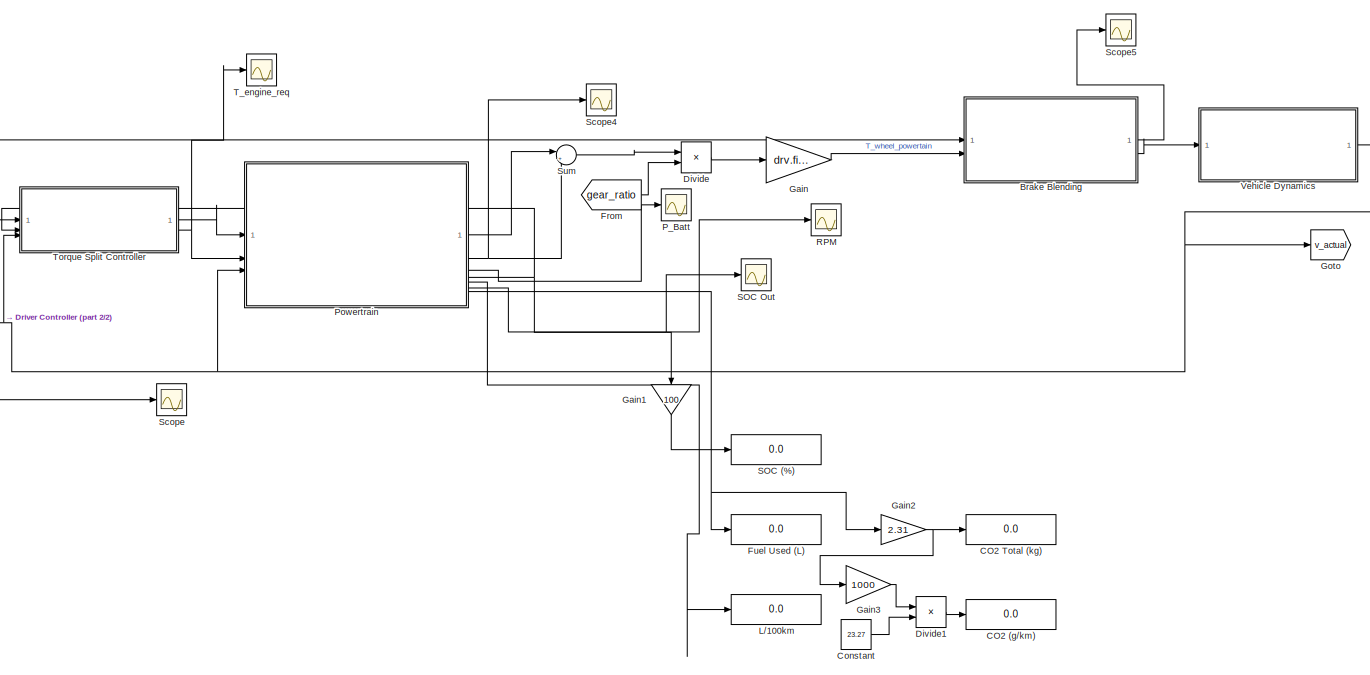
[diagram: root canvas - part 1/2, center side, full height]
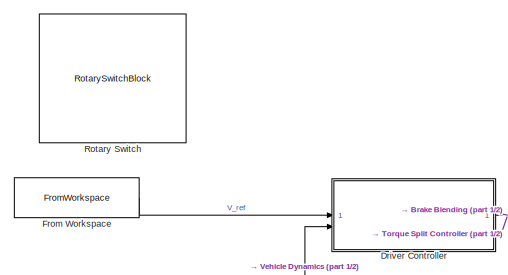
[diagram: root canvas - part 2/2, top left region]
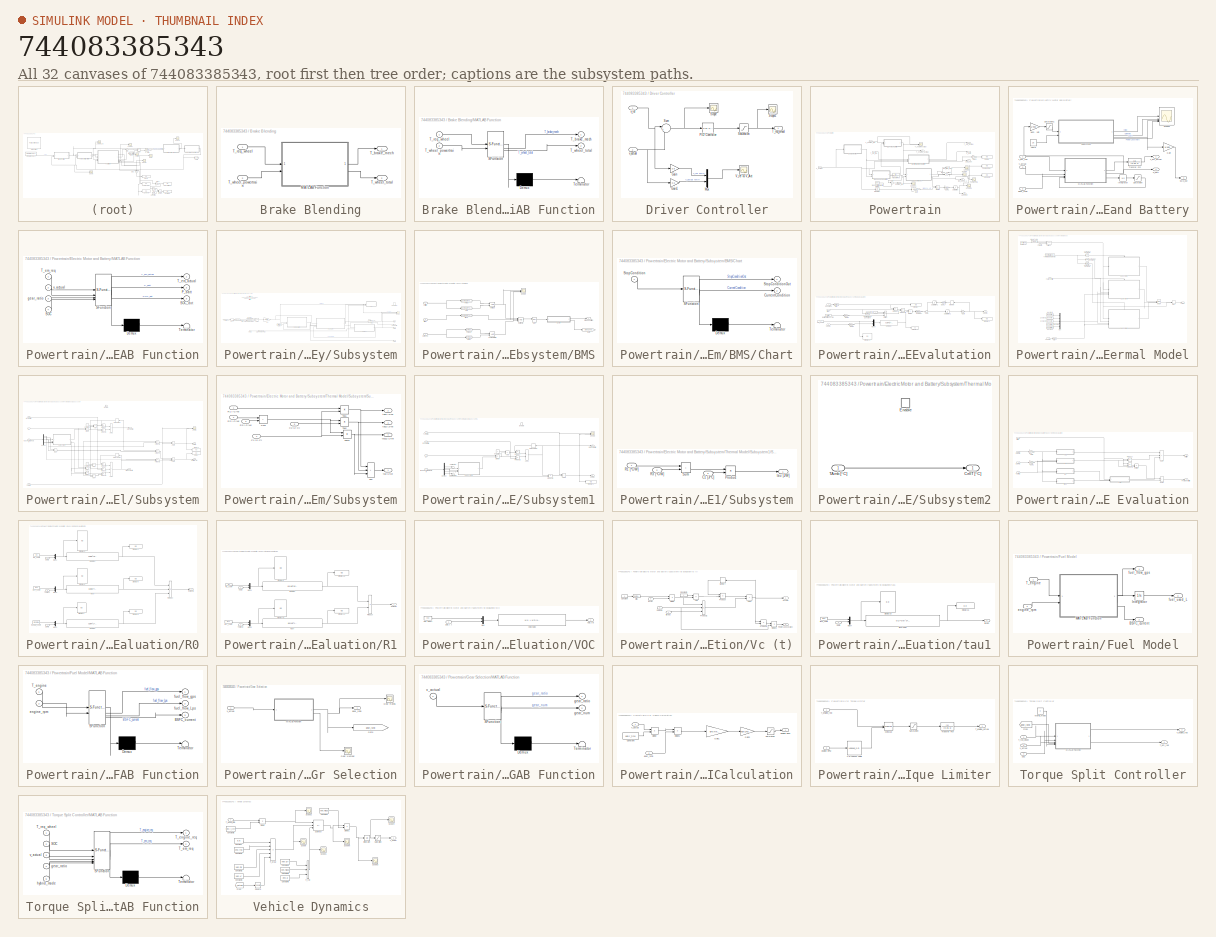
[diagram: thumbnail index - all 32 canvases of the model, root first then tree order]
MODEL slx_744083385343
KIND model
CONFIG AbsTol = auto
CONFIG EnableMultiTasking = off
CONFIG FixedStep = 0.01
CONFIG MaxStep = auto
CONFIG MinStep = auto
CONFIG RelTol = 1e-3
CONFIG SampleTimeConstraint = Unconstrained
CONFIG SolverName = ode4
CONFIG StartTime = 0.0
CONFIG StopTime = t_sim(end)
BLOCK [SubSystem] Brake Blending
BLOCK [SubSystem] Brake Blending/MATLAB Function
  ErrorFcn = Stateflow.Translate.translate
  PermitHierarchicalResolution = ExplicitOnly
  SFBlockType = MATLAB Function
  TreatAsAtomicUnit = on
BLOCK [Demux] Brake Blending/MATLAB Function/ Demux 
  Outputs = 1
BLOCK [S-Function] Brake Blending/MATLAB Function/ SFunction 
  EnableBusSupport = off
  FunctionName = sf_sfun
  PortCounts = [2 3]
  SFcnIsStateOwnerBlock = off
  SFunctionDeploymentMode = off
  Tag = Stateflow S-Function 3
BLOCK [Terminator] Brake Blending/MATLAB Function/ Terminator 
BLOCK [Outport] Brake Blending/MATLAB Function/T_brake_mech
BLOCK [Inport] Brake Blending/MATLAB Function/T_req_wheel
BLOCK [Inport] Brake Blending/MATLAB Function/T_wheel_powertrain
  Port = 2
BLOCK [Outport] Brake Blending/MATLAB Function/T_wheel_total
  Port = 2
BLOCK [Outport] Brake Blending/T_brake_mech
BLOCK [Inport] Brake Blending/T_req_wheel
BLOCK [Inport] Brake Blending/T_wheel_powertrain
  Port = 2
BLOCK [Outport] Brake Blending/T_wheel_total
  Port = 2
BLOCK [Display] CO2 (g//km)
  Decimation = 1
BLOCK [Display] CO2 Total (kg)
  Decimation = 1
BLOCK [Constant] Constant
  Value = 23.27
BLOCK [Product] Divide
  Inputs = **
BLOCK [Product] Divide1
  Inputs = */
BLOCK [SubSystem] Driver Controller
BLOCK [Gain] Driver Controller/Gain
  Gain = 3.6
BLOCK [Gain] Driver Controller/Gain1
  Gain = 3.6
BLOCK [Mux] Driver Controller/Mux
  DisplayOption = bar
  Inputs = 2
BLOCK [Reference] Driver Controller/PID Controller  REF=slpidlib/PID Controller
  LibrarySourceBlock = simulink/Continuous/PID Controller
  SourceBlock = slpidlib/PID Controller
  SourceType = PID 1dof
BLOCK [Saturate] Driver Controller/Saturation
  LowerLimit = -8000
  UpperLimit = 9000
BLOCK [Scope] Driver Controller/Scope
  ActiveDisplayYMaximum = 6.83054850600374
  ActiveDisplayYMinimum = -5.292631374409976
  DataLoggingVariableName = ScopeData1
  Floating = off
  GraphicalSettings = {"AxesScalingProperties":{"AlignXAxis":"Center","AlignYAxis":"Center","AutoScaleXAxisLimits":false,"AxesScaling":"Manual","AxesScalingNumUpdates":10,"ExpandOnly":true,"ScaleAxesLimitsAtStop":false,"XAxisDataRange":100,"YAxisDataRange":80},"DisplayProperties":{"ColorOrder":["auto","auto","auto","auto","auto","auto","auto","auto","auto","auto","auto","auto","auto","auto","auto","auto","auto","auto",...<+1998ch>
  MultipleDisplayCache = [{"MaxYLimMag":5.2876800673383411,"MaxYLimReal":6.83054850600374,"MinYLimMag":0,"MinYLimReal":-5.292631374409976,"PlotAsMagnitudePhase":false,"ShowGrid":true,"ShowLegend":false,"Title":"%<SignalLabel>","YLabel":""}]
  NumInputPorts = 1
  ScopeFrameLocation = window
  WasSavedAsWebScope = on
  WindowPosition = [2.000000,37.000000,1916.000000,1006.000000,]
BLOCK [Scope] Driver Controller/Scope1
  ActiveDisplayYMaximum = 11692.241695853578
  ActiveDisplayYMinimum = -7685.0445245143128
  DataLoggingVariableName = ScopeData23
  Floating = off
  GraphicalSettings = {"AxesScalingProperties":{"AlignXAxis":"Center","AlignYAxis":"Center","AutoScaleXAxisLimits":false,"AxesScaling":"Manual","AxesScalingNumUpdates":10,"ExpandOnly":true,"ScaleAxesLimitsAtStop":false,"XAxisDataRange":100,"YAxisDataRange":80},"DisplayProperties":{"ColorOrder":["auto","auto","auto","auto","auto","auto","auto","auto","auto","auto","auto","auto","auto","auto","auto","auto","auto","auto",...<+1916ch>
  MultipleDisplayCache = [{"MaxYLimMag":6722.6459921948335,"MaxYLimReal":11692.241695853578,"MinYLimMag":0,"MinYLimReal":-7685.0445245143128,"PlotAsMagnitudePhase":false,"ShowGrid":true,"ShowLegend":false,"Title":"%<SignalLabel>","YLabel":""}]
  NumInputPorts = 1
  ScopeFrameLocation = window
  WasSavedAsWebScope = on
  WindowPosition = [680.000000,330.000000,560.000000,420.000000,]
BLOCK [Sum] Driver Controller/Sum
  Inputs = |+-
BLOCK [Outport] Driver Controller/T_req_wheel
BLOCK [Scope] Driver Controller/V_ref vs V_Act
  ActiveDisplayYMaximum = 139.67580246943703
  ActiveDisplayYMinimum = -15.519533607715223
  DataLoggingVariableName = ScopeData8
  Floating = off
  GraphicalSettings = {"AxesScalingProperties":{"AlignXAxis":"Center","AlignYAxis":"Center","AutoScaleXAxisLimits":false,"AxesScaling":"Manual","AxesScalingNumUpdates":10,"ExpandOnly":true,"ScaleAxesLimitsAtStop":false,"XAxisDataRange":100,"YAxisDataRange":80},"DisplayProperties":{"ColorOrder":["auto","auto","auto","auto","auto","auto","auto","auto","auto","auto","auto","auto","auto","auto","auto","auto","auto","auto",...<+2141ch>
  MultipleDisplayCache = [{"MaxYLimMag":139.67580246943703,"MaxYLimReal":139.67580246943703,"MinYLimMag":0,"MinYLimReal":-15.519533607715223,"PlotAsMagnitudePhase":false,"ShowGrid":true,"ShowLegend":true,"Title":"%<SignalLabel>","YLabel":""}]
  NumInputPorts = 1
  ScopeFrameLocation = window
  ShowLegend = on
  Visible = on
  WasSavedAsWebScope = on
  WindowPosition = [0.000000,32.000000,1920.000000,1017.000000,]
BLOCK [Inport] Driver Controller/v_actual
  Port = 2
BLOCK [Inport] Driver Controller/v_ref
BLOCK [From] From
  GotoTag = gear_ratio
  TagVisibility = global
BLOCK [FromWorkspace] From Workspace
  VariableName = drive_cycle_signal
BLOCK [Display] Fuel Used (L)
  Decimation = 1
BLOCK [Gain] Gain
  Gain = drv.final_drive * drv.efficiency
BLOCK [Gain] Gain1
  Gain = 100
  NameLocation = left
BLOCK [Gain] Gain2
  Gain = 2.31
BLOCK [Gain] Gain3
  Gain = 1000
BLOCK [Goto] Goto
  GotoTag = v_actual
  TagVisibility = global
BLOCK [Display] L//100km
  Decimation = 1
BLOCK [Scope] P_Batt
  ActiveDisplayYMaximum = 24607.76220934758
  ActiveDisplayYMinimum = -43544.197938471829
  DataLoggingVariableName = ScopeData9
  Floating = off
  GraphicalSettings = {"Style":{"BackgroundColor":[0.12941176470588237,0.12941176470588237,0.12941176470588237],"AxesColor":[0.07058823529411765,0.07058823529411765,0.07058823529411765],"LabelsColor":[0.8509803921568627,0.8509803921568627,0.8509803921568627],"PreserveColors":false,"Visible":[true],"LineStyle":["-"],"LineWidth":[1.5],"BarWidth":[0.9],"LineColor":["auto"],"LineFaceAlpha":[1],"LineEdgeAlpha":[1],"Marker":...<+2013ch>
  MultipleDisplayCache = [{"MaxYLimMag":43544.197938471829,"MaxYLimReal":24607.76220934758,"MinYLimMag":0,"MinYLimReal":-43544.197938471829,"PlotAsMagnitudePhase":false,"ShowGrid":true,"ShowLegend":false,"Title":"%<SignalLabel>","YLabel":""}]
  NumInputPorts = 1
  ScopeFrameLocation = window
  WasSavedAsWebScope = on
  WindowPosition = [481.000000,296.000000,958.000000,488.000000,]
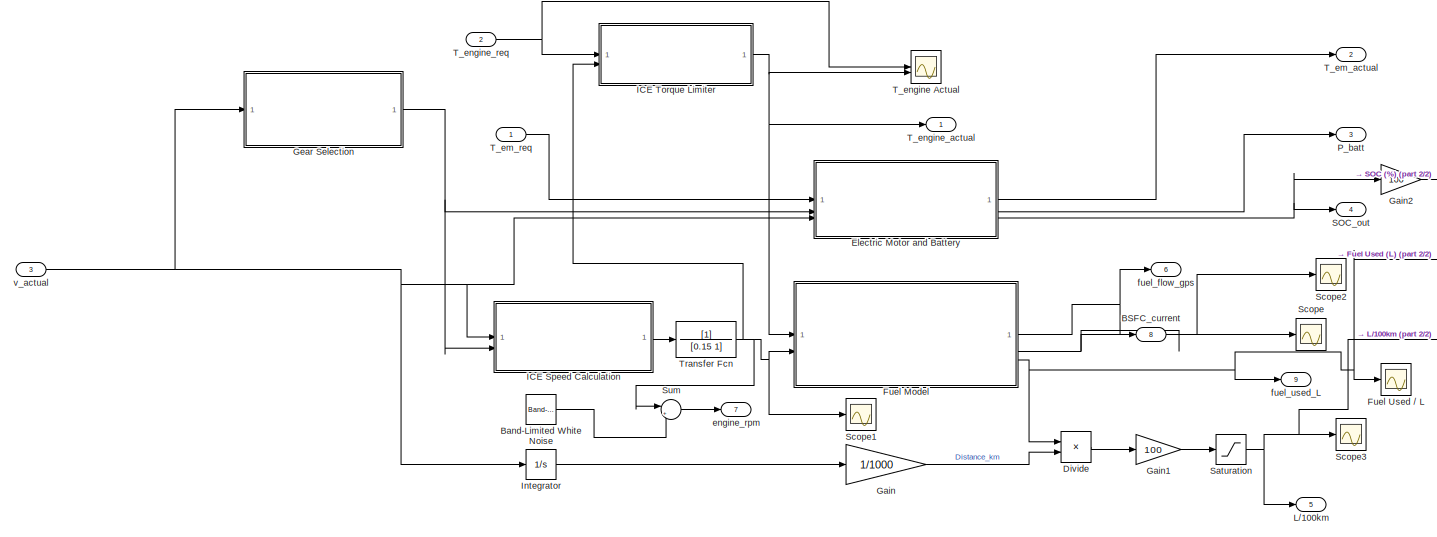
[diagram: Powertrain - part 1/2, most of the canvas]
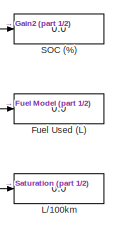
[diagram: Powertrain - part 2/2, middle right region]
BLOCK [SubSystem] Powertrain
BLOCK [Outport] Powertrain/BSFC_current
  Port = 8
BLOCK [Reference] Powertrain/Band-Limited White Noise  REF=simulink/Sources/Band-Limited
White Noise
  SourceBlock = simulink/Sources/Band-Limited\nWhite Noise
  SourceType = Band-Limited White Noise.
BLOCK [Product] Powertrain/Divide
  Inputs = */
BLOCK [SubSystem] Powertrain/Electric Motor and Battery
BLOCK [Gain] Powertrain/Electric Motor and Battery/Gain
  Gain = 1/100
BLOCK [Integrator] Powertrain/Electric Motor and Battery/Integrator
  InitialCondition = batt.SOC_init
BLOCK [SubSystem] Powertrain/Electric Motor and Battery/MATLAB Function
  ErrorFcn = Stateflow.Translate.translate
  PermitHierarchicalResolution = ExplicitOnly
  SFBlockType = MATLAB Function
  TreatAsAtomicUnit = on
BLOCK [Demux] Powertrain/Electric Motor and Battery/MATLAB Function/ Demux 
  Outputs = 1
BLOCK [S-Function] Powertrain/Electric Motor and Battery/MATLAB Function/ SFunction 
  EnableBusSupport = off
  FunctionName = sf_sfun
  PortCounts = [4 4]
  SFcnIsStateOwnerBlock = off
  SFunctionDeploymentMode = off
  Tag = Stateflow S-Function 4
BLOCK [Terminator] Powertrain/Electric Motor and Battery/MATLAB Function/ Terminator 
BLOCK [Outport] Powertrain/Electric Motor and Battery/MATLAB Function/P_batt
  Port = 2
BLOCK [Inport] Powertrain/Electric Motor and Battery/MATLAB Function/SOC
  Port = 4
BLOCK [Outport] Powertrain/Electric Motor and Battery/MATLAB Function/SOC_dot
  Port = 3
BLOCK [Outport] Powertrain/Electric Motor and Battery/MATLAB Function/T_em_actual
BLOCK [Inport] Powertrain/Electric Motor and Battery/MATLAB Function/T_em_req
BLOCK [Inport] Powertrain/Electric Motor and Battery/MATLAB Function/gear_ratio
  Port = 3
BLOCK [Inport] Powertrain/Electric Motor and Battery/MATLAB Function/v_actual
  Port = 2
BLOCK [Gain] Powertrain/Electric Motor and Battery/Nom. Volt
  Gain = 1/400
BLOCK [Outport] Powertrain/Electric Motor and Battery/P_batt
  Port = 2
BLOCK [Outport] Powertrain/Electric Motor and Battery/SOC_out
  Port = 3
BLOCK [Saturate] Powertrain/Electric Motor and Battery/Saturation
  LowerLimit = 0.2
  UpperLimit = 1
BLOCK [Saturate] Powertrain/Electric Motor and Battery/Saturation1
  LowerLimit = 0
  UpperLimit = 300
BLOCK [Scope] Powertrain/Electric Motor and Battery/Scope3
  ActiveDisplayYMaximum = 417.32189559936523
  ActiveDisplayYMinimum = 410.62881851196289
  DataLoggingVariableName = ScopeData26
  Floating = off
  GraphicalSettings = {"Style":{"BackgroundColor":[0.12941176470588237,0.12941176470588237,0.12941176470588237],"AxesColor":[0.07058823529411765,0.07058823529411765,0.07058823529411765],"LabelsColor":[0.8509803921568627,0.8509803921568627,0.8509803921568627],"PreserveColors":false,"Visible":[true,true,true,true],"LineStyle":["-","-","-","-"],"LineWidth":[1.5,1.5,1.5,1.5],"BarWidth":[0.9,0.9,0.9,0.9],"LineColor":["auto"...<+3177ch>
  LayoutDimensionsString = [2,2]
  MultipleDisplayCache = [{"MaxYLimMag":417.32189559936523,"MaxYLimReal":417.32189559936523,"MinYLimMag":410.62881851196289,"MinYLimReal":410.62881851196289,"PlotAsMagnitudePhase":false,"ShowGrid":true,"ShowLegend":false,"Title":"%<SignalLabel>","YLabel":""},{"MaxYLimMag":25.029976367950439,"MaxYLimReal":25.029976367950439,"MinYLimMag":24.996669292449951,"MinYLimReal":24.996669292449951,"PlotAsMagnitudePhase":false,"ShowG...<+520ch>
  NumInputPorts = 4
  ScopeFrameLocation = window
  WasSavedAsWebScope = on
  WindowPosition = [0.000000,32.000000,1920.000000,1017.000000,]
BLOCK [SubSystem] Powertrain/Electric Motor and Battery/Subsystem
BLOCK [SubSystem] Powertrain/Electric Motor and Battery/Subsystem/BMS
BLOCK [Inport] Powertrain/Electric Motor and Battery/Subsystem/BMS/CellT [°C]
  Port = 3
BLOCK [SubSystem] Powertrain/Electric Motor and Battery/Subsystem/BMS/Chart
  ErrorFcn = Stateflow.Translate.translate
  PermitHierarchicalResolution = ExplicitOnly
  SFBlockType = Chart
  TreatAsAtomicUnit = on
BLOCK [Demux] Powertrain/Electric Motor and Battery/Subsystem/BMS/Chart/ Demux 
  Outputs = 1
BLOCK [S-Function] Powertrain/Electric Motor and Battery/Subsystem/BMS/Chart/ SFunction 
  EnableBusSupport = off
  FunctionName = sf_sfun
  PortCounts = [1 3]
  SFcnIsStateOwnerBlock = off
  SFunctionDeploymentMode = off
  Tag = Stateflow S-Function 6
BLOCK [Terminator] Powertrain/Electric Motor and Battery/Subsystem/BMS/Chart/ Terminator 
BLOCK [Outport] Powertrain/Electric Motor and Battery/Subsystem/BMS/Chart/CurrentCondition
  Port = 2
BLOCK [Inport] Powertrain/Electric Motor and Battery/Subsystem/BMS/Chart/StopCondition
BLOCK [Outport] Powertrain/Electric Motor and Battery/Subsystem/BMS/Chart/StopConditionOut
BLOCK [Logic] Powertrain/Electric Motor and Battery/Subsystem/BMS/Current1
  AllPortsSameDT = off
  IconShape = distinctive
  Inputs = 3
  OutDataTypeStr = boolean
BLOCK [Goto] Powertrain/Electric Motor and Battery/Subsystem/BMS/Goto
  GotoTag = StopCondition
  TagVisibility = global
BLOCK [Reference] Powertrain/Electric Motor and Battery/Subsystem/BMS/IMAX  REF=simulink/Logic and Bit
Operations/Compare
To Constant
  SourceBlock = simulink/Logic and Bit\nOperations/Compare\nTo Constant
  SourceType = Compare To Constant
BLOCK [Logic] Powertrain/Electric Motor and Battery/Subsystem/BMS/NOT
  AllPortsSameDT = off
  IconShape = distinctive
  Operator = NOT
  OutDataTypeStr = boolean
BLOCK [Scope] Powertrain/Electric Motor and Battery/Subsystem/BMS/Scope
  ActiveDisplayYMaximum = 1.1
  ActiveDisplayYMinimum = 0.9
  DataLoggingVariableName = ScopeData1
  Floating = off
  GraphicalSettings = {"GraphicalSettings":{"LegacySettings":true,"Style":{"AxesScalingProperties":{"ScaleAxesLimitsAtStop":false},"Style":{"AxesColor":"[0 0 0]","ChannelNames":["","",""],"ColorOrder":"[1 1 0.0666666666666667;0.0745098039215686 0.623529411764706 1;1 0.411764705882353 0.16078431372549;0.392156862745098 0.831372549019608 0.0745098039215686;0.717647058823529 0.274509803921569 1;0.0588235294117647 1 1;1 0....<+461ch>
  LayoutDimensionsString = [3 1]
  MultipleDisplayCache = [{"MaxYLimMag":1.1,"MaxYLimReal":1.1,"MinYLimMag":0.9,"MinYLimReal":0.9,"PlotAsMagnitudePhase":false,"ShowGrid":true,"ShowLegend":false,"Title":"%<SignalLabel>","YLabel":""},{"MaxYLimMag":10,"MaxYLimReal":1.1,"MinYLimMag":0,"MinYLimReal":0.9,"PlotAsMagnitudePhase":false,"ShowGrid":true,"ShowLegend":false,"Title":"%<SignalLabel>","YLabel":""},{"MaxYLimMag":10,"MaxYLimReal":1.1,"MinYLimMag":0,"MinYL...<+114ch>
  NumInputPorts = 3
  WasSavedAsWebScope = on
BLOCK [Outport] Powertrain/Electric Motor and Battery/Subsystem/BMS/StopCondition
BLOCK [Logic] Powertrain/Electric Motor and Battery/Subsystem/BMS/Temperature
  AllPortsSameDT = off
  IconShape = distinctive
  OutDataTypeStr = boolean
BLOCK [Reference] Powertrain/Electric Motor and Battery/Subsystem/BMS/Vmax  REF=simulink/Logic and Bit
Operations/Compare
To Constant
  SourceBlock = simulink/Logic and Bit\nOperations/Compare\nTo Constant
  SourceType = Compare To Constant
BLOCK [Reference] Powertrain/Electric Motor and Battery/Subsystem/BMS/Vmax2  REF=simulink/Logic and Bit
Operations/Compare
To Constant
  SourceBlock = simulink/Logic and Bit\nOperations/Compare\nTo Constant
  SourceType = Compare To Constant
BLOCK [Reference] Powertrain/Electric Motor and Battery/Subsystem/BMS/Vmin  REF=simulink/Logic and Bit
Operations/Compare
To Constant
  SourceBlock = simulink/Logic and Bit\nOperations/Compare\nTo Constant
  SourceType = Compare To Constant
BLOCK [Reference] Powertrain/Electric Motor and Battery/Subsystem/BMS/Vmin2  REF=simulink/Logic and Bit
Operations/Compare
To Constant
  SourceBlock = simulink/Logic and Bit\nOperations/Compare\nTo Constant
  SourceType = Compare To Constant
BLOCK [Logic] Powertrain/Electric Motor and Battery/Subsystem/BMS/Voltage
  AllPortsSameDT = off
  IconShape = distinctive
  OutDataTypeStr = boolean
BLOCK [Inport] Powertrain/Electric Motor and Battery/Subsystem/BMS/iB [A]
  Port = 2
BLOCK [Inport] Powertrain/Electric Motor and Battery/Subsystem/BMS/vB(t) [V]
BLOCK [Outport] Powertrain/Electric Motor and Battery/Subsystem/CellT [°C]
  Port = 2
BLOCK [Constant] Powertrain/Electric Motor and Battery/Subsystem/Constant
  OutDataTypeStr = single
  Value = 0
BLOCK [DataTypeConversion] Powertrain/Electric Motor and Battery/Subsystem/Data Type Conversion
  OutDataTypeStr = single
  RndMeth = Floor
  SaturateOnIntegerOverflow = off
BLOCK [DataTypeConversion] Powertrain/Electric Motor and Battery/Subsystem/Data Type Conversion1
  OutDataTypeStr = single
  RndMeth = Floor
  SaturateOnIntegerOverflow = off
BLOCK [DataTypeConversion] Powertrain/Electric Motor and Battery/Subsystem/Data Type Conversion2
  OutDataTypeStr = single
  RndMeth = Floor
  SaturateOnIntegerOverflow = off
BLOCK [Delay] Powertrain/Electric Motor and Battery/Subsystem/Delay1
  DelayLength = 1
  InputPortMap = u0
BLOCK [From] Powertrain/Electric Motor and Battery/Subsystem/From
  GotoTag = StopCondition
  TagVisibility = global
BLOCK [Gain] Powertrain/Electric Motor and Battery/Subsystem/Gain
  Gain = 1/parallelNumber
  OutDataTypeStr = single
BLOCK [Gain] Powertrain/Electric Motor and Battery/Subsystem/Gain1
  Gain = seriesNumber
BLOCK [Outport] Powertrain/Electric Motor and Battery/Subsystem/PowrLoss(t) [W]
  Port = 4
BLOCK [SubSystem] Powertrain/Electric Motor and Battery/Subsystem/SOC Evalutation
BLOCK [Constant] Powertrain/Electric Motor and Battery/Subsystem/SOC Evalutation/Battery Efficency [%]
  OutDataTypeStr = single
  Value = BattEff
BLOCK [Reference] Powertrain/Electric Motor and Battery/Subsystem/SOC Evalutation/Compare To Constant  REF=simulink/Logic and Bit
Operations/Compare
To Constant
  SourceBlock = simulink/Logic and Bit\nOperations/Compare\nTo Constant
  SourceType = Compare To Constant
BLOCK [Constant] Powertrain/Electric Motor and Battery/Subsystem/SOC Evalutation/Constant
  OutDataTypeStr = single
BLOCK [Constant] Powertrain/Electric Motor and Battery/Subsystem/SOC Evalutation/Constant1
  OutDataTypeStr = single
BLOCK [Fcn] Powertrain/Electric Motor and Battery/Subsystem/SOC Evalutation/Cp(SOH)
  Expr = u(1)*u(4)^2 + u(2)*u(4) + u(3)
BLOCK [Constant] Powertrain/Electric Motor and Battery/Subsystem/SOC Evalutation/Cp_coeff
  OutDataTypeStr = single
  Value = Cp
BLOCK [Display] Powertrain/Electric Motor and Battery/Subsystem/SOC Evalutation/Display
  Decimation = 1
BLOCK [Display] Powertrain/Electric Motor and Battery/Subsystem/SOC Evalutation/Display1
  Decimation = 1
BLOCK [Display] Powertrain/Electric Motor and Battery/Subsystem/SOC Evalutation/Display2
  Decimation = 1
BLOCK [Display] Powertrain/Electric Motor and Battery/Subsystem/SOC Evalutation/Display3
  Decimation = 1
BLOCK [Product] Powertrain/Electric Motor and Battery/Subsystem/SOC Evalutation/Divide
  Inputs = */
BLOCK [Gain] Powertrain/Electric Motor and Battery/Subsystem/SOC Evalutation/Gain
  Gain = 100
BLOCK [Gain] Powertrain/Electric Motor and Battery/Subsystem/SOC Evalutation/Gain1
  Gain = 1/100
  NameLocation = top
BLOCK [Gain] Powertrain/Electric Motor and Battery/Subsystem/SOC Evalutation/Gain2
  Gain = 1/100
BLOCK [Gain] Powertrain/Electric Motor and Battery/Subsystem/SOC Evalutation/Gain3
  Gain = 1/100
BLOCK [Memory] Powertrain/Electric Motor and Battery/Subsystem/SOC Evalutation/Memory
  InitialCondition = InitialSOC
  NameLocation = top
BLOCK [Mux] Powertrain/Electric Motor and Battery/Subsystem/SOC Evalutation/Mux6
  DisplayOption = bar
  Inputs = 2
BLOCK [Product] Powertrain/Electric Motor and Battery/Subsystem/SOC Evalutation/Product
  OutDataTypeStr = single
BLOCK [Product] Powertrain/Electric Motor and Battery/Subsystem/SOC Evalutation/Product1
BLOCK [Outport] Powertrain/Electric Motor and Battery/Subsystem/SOC Evalutation/SOC [%]
BLOCK [Inport] Powertrain/Electric Motor and Battery/Subsystem/SOC Evalutation/SOH [%]
  Port = 2
BLOCK [Saturate] Powertrain/Electric Motor and Battery/Subsystem/SOC Evalutation/Saturation1
  LowerLimit = 0.001
  NameLocation = top
  UpperLimit = 0.999
BLOCK [Saturate] Powertrain/Electric Motor and Battery/Subsystem/SOC Evalutation/Saturation2
  LowerLimit = 0.001
  UpperLimit = 0.999
BLOCK [Sum] Powertrain/Electric Motor and Battery/Subsystem/SOC Evalutation/Sum
  Inputs = +-|
  OutDataTypeStr = single
BLOCK [Switch] Powertrain/Electric Motor and Battery/Subsystem/SOC Evalutation/Switch
  Criteria = u2 > Threshold
  InputSameDT = off
  SaturateOnIntegerOverflow = off
BLOCK [Gain] Powertrain/Electric Motor and Battery/Subsystem/SOC Evalutation/[As] -> [Ah]
  Gain = 1/3600
BLOCK [SampleTimeMath] Powertrain/Electric Motor and Battery/Subsystem/SOC Evalutation/dt [s]
  TsampMathOp = Ts Only
BLOCK [Inport] Powertrain/Electric Motor and Battery/Subsystem/SOC Evalutation/iB [A]
BLOCK [Outport] Powertrain/Electric Motor and Battery/Subsystem/SOC [%]
  Port = 3
BLOCK [Constant] Powertrain/Electric Motor and Battery/Subsystem/SOH [%]
  OutDataTypeStr = single
  Value = InitialSOH
BLOCK [Scope] Powertrain/Electric Motor and Battery/Subsystem/Scope1
  ActiveDisplayYMaximum = 4.36561
  ActiveDisplayYMinimum = 2.28821
  DataLoggingVariableName = ScopeData2
  Floating = off
  GraphicalSettings = {"GraphicalSettings":{"LegacySettings":true,"Style":{"AxesScalingProperties":{"ScaleAxesLimitsAtStop":false},"Style":{"AxesColor":"[0 0 0]","ChannelNames":["","",""],"ColorOrder":"[1 1 0.0666666666666667;0.0745098039215686 0.623529411764706 1;1 0.411764705882353 0.16078431372549;0.392156862745098 0.831372549019608 0.0745098039215686;0.717647058823529 0.274509803921569 1;0.0588235294117647 1 1;1 0....<+486ch>
  LayoutDimensionsString = [3 1]
  MultipleDisplayCache = [{"MaxYLimMag":4.36561,"MaxYLimReal":4.36561,"MinYLimMag":2.28821,"MinYLimReal":2.28821,"PlotAsMagnitudePhase":false,"ShowGrid":true,"ShowLegend":false,"Title":"%<SignalLabel>","YLabel":""},{"MaxYLimMag":4.31362,"MaxYLimReal":47.10478,"MinYLimMag":2.20212,"MinYLimReal":-24.34986,"PlotAsMagnitudePhase":false,"ShowGrid":true,"ShowLegend":false,"Title":"%<SignalLabel>","YLabel":""},{"MaxYLimMag":4.31...<+173ch>
  NumInputPorts = 3
  WasSavedAsWebScope = on
  WindowPosition = [1 41 2560 1323]
BLOCK [Stop] Powertrain/Electric Motor and Battery/Subsystem/Stop Simulation
BLOCK [Switch] Powertrain/Electric Motor and Battery/Subsystem/Switch
  Criteria = u2 > Threshold
  InputSameDT = off
  SaturateOnIntegerOverflow = off
  Threshold = 1
BLOCK [Inport] Powertrain/Electric Motor and Battery/Subsystem/TAmb [°C]
  Port = 2
BLOCK [SubSystem] Powertrain/Electric Motor and Battery/Subsystem/Thermal Model
BLOCK [Outport] Powertrain/Electric Motor and Battery/Subsystem/Thermal Model/CellT [°C]
BLOCK [Reference] Powertrain/Electric Motor and Battery/Subsystem/Thermal Model/Compare To Constant  REF=simulink/Logic and Bit
Operations/Compare
To Constant
  SourceBlock = simulink/Logic and Bit\nOperations/Compare\nTo Constant
  SourceType = Compare To Constant
BLOCK [Reference] Powertrain/Electric Motor and Battery/Subsystem/Thermal Model/Compare To Constant1  REF=simulink/Logic and Bit
Operations/Compare
To Constant
  SourceBlock = simulink/Logic and Bit\nOperations/Compare\nTo Constant
  SourceType = Compare To Constant
BLOCK [Reference] Powertrain/Electric Motor and Battery/Subsystem/Thermal Model/Compare To Constant2  REF=simulink/Logic and Bit
Operations/Compare
To Constant
  SourceBlock = simulink/Logic and Bit\nOperations/Compare\nTo Constant
  SourceType = Compare To Constant
BLOCK [Constant] Powertrain/Electric Motor and Battery/Subsystem/Thermal Model/Constant
  OutDataTypeStr = single
BLOCK [Constant] Powertrain/Electric Motor and Battery/Subsystem/Thermal Model/Constant1
  OutDataTypeStr = single
  Value = R2Therml
BLOCK [Constant] Powertrain/Electric Motor and Battery/Subsystem/Thermal Model/Constant2
  OutDataTypeStr = single
  Value = R1Therml
BLOCK [Constant] Powertrain/Electric Motor and Battery/Subsystem/Thermal Model/Constant3
  OutDataTypeStr = single
  Value = R3Therml
BLOCK [Constant] Powertrain/Electric Motor and Battery/Subsystem/Thermal Model/Constant4
  OutDataTypeStr = single
  Value = C1Thermal
BLOCK [Constant] Powertrain/Electric Motor and Battery/Subsystem/Thermal Model/Constant5
  OutDataTypeStr = single
  Value = C2Thermal
BLOCK [Delay] Powertrain/Electric Motor and Battery/Subsystem/Thermal Model/Delay
  DelayLength = 1
  InitialConditionSource = Input port
  InputPortMap = u0,p4
BLOCK [Constant] Powertrain/Electric Motor and Battery/Subsystem/Thermal Model/Display Temp
  OutDataTypeStr = single
  Value = TRoom
BLOCK [Merge] Powertrain/Electric Motor and Battery/Subsystem/Thermal Model/Merge
  Inputs = 3
BLOCK [Mux] Powertrain/Electric Motor and Battery/Subsystem/Thermal Model/Mux
  DisplayOption = bar
  Inputs = 5
BLOCK [Inport] Powertrain/Electric Motor and Battery/Subsystem/Thermal Model/PowrLoss(t) [W]
BLOCK [Constant] Powertrain/Electric Motor and Battery/Subsystem/Thermal Model/Reference
  OutDataTypeStr = single
  Value = ThermReff
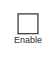
[diagram: Powertrain/Electric Motor and Battery/Subsystem/Thermal Model/Subsystem - part 1/3, top center region]
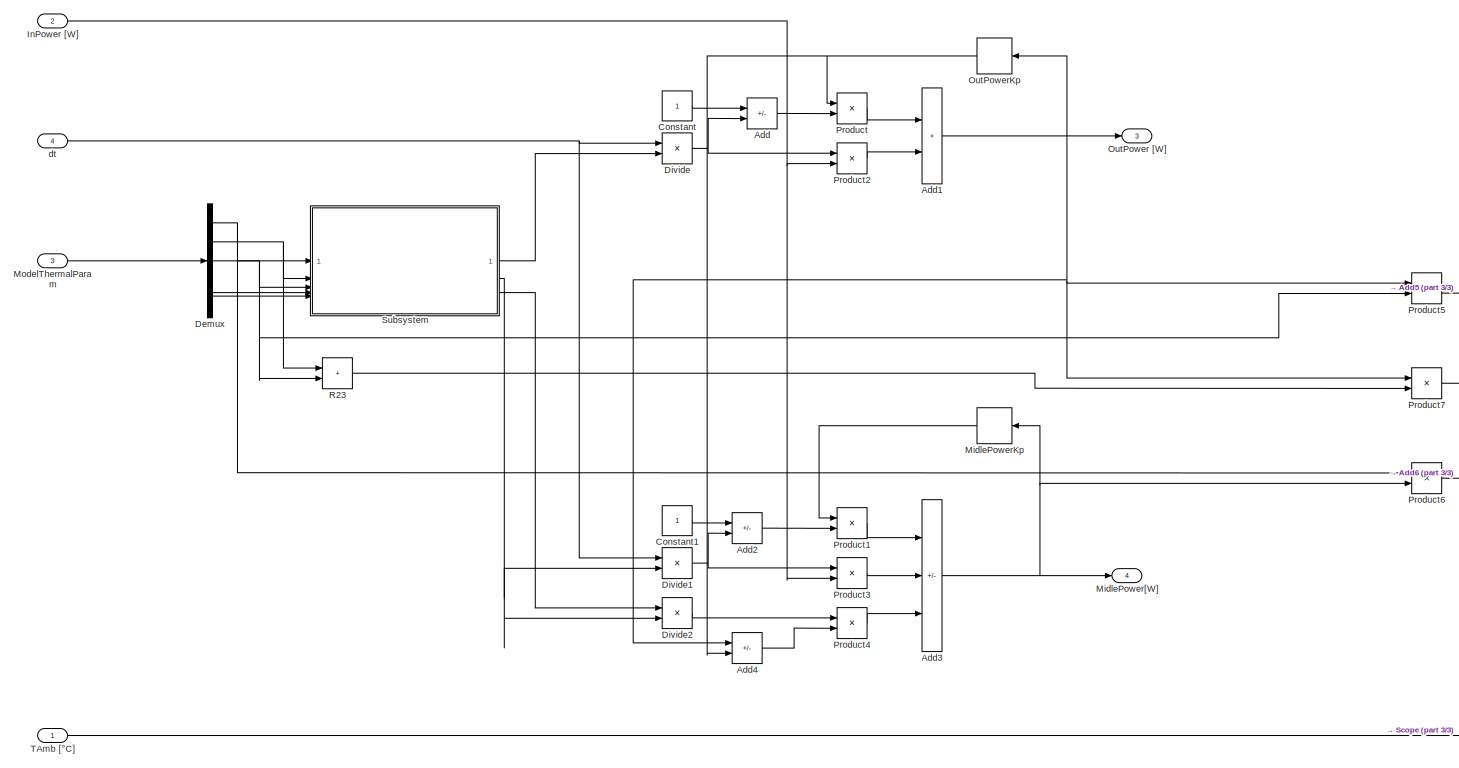
[diagram: Powertrain/Electric Motor and Battery/Subsystem/Thermal Model/Subsystem - part 2/3, most of the canvas]
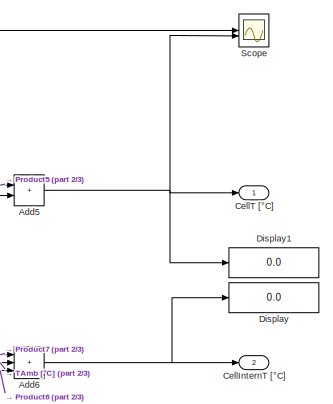
[diagram: Powertrain/Electric Motor and Battery/Subsystem/Thermal Model/Subsystem - part 3/3, middle right region]
BLOCK [SubSystem] Powertrain/Electric Motor and Battery/Subsystem/Thermal Model/Subsystem
BLOCK [Sum] Powertrain/Electric Motor and Battery/Subsystem/Thermal Model/Subsystem/Add
  IconShape = rectangular
  Inputs = +-
BLOCK [Sum] Powertrain/Electric Motor and Battery/Subsystem/Thermal Model/Subsystem/Add1
  IconShape = rectangular
BLOCK [Sum] Powertrain/Electric Motor and Battery/Subsystem/Thermal Model/Subsystem/Add2
  IconShape = rectangular
  Inputs = +-
BLOCK [Sum] Powertrain/Electric Motor and Battery/Subsystem/Thermal Model/Subsystem/Add3
  IconShape = rectangular
  Inputs = ++-
BLOCK [Sum] Powertrain/Electric Motor and Battery/Subsystem/Thermal Model/Subsystem/Add4
  IconShape = rectangular
  Inputs = +-
BLOCK [Sum] Powertrain/Electric Motor and Battery/Subsystem/Thermal Model/Subsystem/Add5
  IconShape = rectangular
BLOCK [Sum] Powertrain/Electric Motor and Battery/Subsystem/Thermal Model/Subsystem/Add6
  IconShape = rectangular
  Inputs = +++
BLOCK [Outport] Powertrain/Electric Motor and Battery/Subsystem/Thermal Model/Subsystem/CellInternT [°C]
  Port = 2
BLOCK [Outport] Powertrain/Electric Motor and Battery/Subsystem/Thermal Model/Subsystem/CellT [°C]
BLOCK [Constant] Powertrain/Electric Motor and Battery/Subsystem/Thermal Model/Subsystem/Constant
  OutDataTypeStr = single
BLOCK [Constant] Powertrain/Electric Motor and Battery/Subsystem/Thermal Model/Subsystem/Constant1
  OutDataTypeStr = single
BLOCK [Demux] Powertrain/Electric Motor and Battery/Subsystem/Thermal Model/Subsystem/Demux
  Outputs = 5
BLOCK [Display] Powertrain/Electric Motor and Battery/Subsystem/Thermal Model/Subsystem/Display
  Decimation = 1
BLOCK [Display] Powertrain/Electric Motor and Battery/Subsystem/Thermal Model/Subsystem/Display1
  Decimation = 1
BLOCK [Product] Powertrain/Electric Motor and Battery/Subsystem/Thermal Model/Subsystem/Divide
  Inputs = */
BLOCK [Product] Powertrain/Electric Motor and Battery/Subsystem/Thermal Model/Subsystem/Divide1
  Inputs = */
BLOCK [Product] Powertrain/Electric Motor and Battery/Subsystem/Thermal Model/Subsystem/Divide2
  Inputs = */
BLOCK [EnablePort] Powertrain/Electric Motor and Battery/Subsystem/Thermal Model/Subsystem/Enable
BLOCK [Inport] Powertrain/Electric Motor and Battery/Subsystem/Thermal Model/Subsystem/InPower [W]
  Port = 2
BLOCK [Delay] Powertrain/Electric Motor and Battery/Subsystem/Thermal Model/Subsystem/MidlePowerKp 
  DelayLength = 1
  InputPortMap = u0
BLOCK [Outport] Powertrain/Electric Motor and Battery/Subsystem/Thermal Model/Subsystem/MidlePower[W]
  Port = 4
BLOCK [Inport] Powertrain/Electric Motor and Battery/Subsystem/Thermal Model/Subsystem/ModelThermalParam
  Port = 3
BLOCK [Outport] Powertrain/Electric Motor and Battery/Subsystem/Thermal Model/Subsystem/OutPower [W]
  Port = 3
BLOCK [Delay] Powertrain/Electric Motor and Battery/Subsystem/Thermal Model/Subsystem/OutPowerKp
  DelayLength = 1
  InputPortMap = u0
BLOCK [Product] Powertrain/Electric Motor and Battery/Subsystem/Thermal Model/Subsystem/Product
  OutDataTypeStr = single
BLOCK [Product] Powertrain/Electric Motor and Battery/Subsystem/Thermal Model/Subsystem/Product1
  OutDataTypeStr = single
BLOCK [Product] Powertrain/Electric Motor and Battery/Subsystem/Thermal Model/Subsystem/Product2
  OutDataTypeStr = single
BLOCK [Product] Powertrain/Electric Motor and Battery/Subsystem/Thermal Model/Subsystem/Product3
  OutDataTypeStr = single
BLOCK [Product] Powertrain/Electric Motor and Battery/Subsystem/Thermal Model/Subsystem/Product4
  OutDataTypeStr = single
BLOCK [Product] Powertrain/Electric Motor and Battery/Subsystem/Thermal Model/Subsystem/Product5
  OutDataTypeStr = single
BLOCK [Product] Powertrain/Electric Motor and Battery/Subsystem/Thermal Model/Subsystem/Product6
  OutDataTypeStr = single
BLOCK [Product] Powertrain/Electric Motor and Battery/Subsystem/Thermal Model/Subsystem/Product7
  OutDataTypeStr = single
BLOCK [Sum] Powertrain/Electric Motor and Battery/Subsystem/Thermal Model/Subsystem/R23
  IconShape = rectangular
BLOCK [Scope] Powertrain/Electric Motor and Battery/Subsystem/Thermal Model/Subsystem/Scope
  ActiveDisplayYMaximum = 20.13592
  ActiveDisplayYMinimum = 19.9849
  DataLoggingVariableName = ScopeData1
  Floating = off
  GraphicalSettings = {"GraphicalSettings":{"LegacySettings":true,"Style":{"Style":{"AxesColor":"[0 0 0]","ChannelNames":[""],"ColorOrder":"[1 1 0.0666666666666667;0.0745098039215686 0.623529411764706 1;1 0.411764705882353 0.16078431372549;0.392156862745098 0.831372549019608 0.0745098039215686;0.717647058823529 0.274509803921569 1;0.0588235294117647 1 1;1 0.0745098039215686 0.650980392156863]","CurrentConfiguration":"e...<+405ch>
  MultipleDisplayCache = [{"MaxYLimMag":20.13592,"MaxYLimReal":20.13592,"MinYLimMag":19.9849,"MinYLimReal":19.9849,"PlotAsMagnitudePhase":false,"ShowGrid":true,"ShowLegend":false,"Title":"%<SignalLabel>","YLabel":""}]
  NumInputPorts = 2
  WasSavedAsWebScope = on
BLOCK [SubSystem] Powertrain/Electric Motor and Battery/Subsystem/Thermal Model/Subsystem/Subsystem
BLOCK [Inport] Powertrain/Electric Motor and Battery/Subsystem/Thermal Model/Subsystem/Subsystem/C1 [J//°C]
  Port = 4
BLOCK [Inport] Powertrain/Electric Motor and Battery/Subsystem/Thermal Model/Subsystem/Subsystem/C2 [J//°C]
  Port = 5
BLOCK [Inport] Powertrain/Electric Motor and Battery/Subsystem/Thermal Model/Subsystem/Subsystem/R1 [°C//W]
BLOCK [Inport] Powertrain/Electric Motor and Battery/Subsystem/Thermal Model/Subsystem/Subsystem/R2 [°C//W]
  Port = 2
BLOCK [Inport] Powertrain/Electric Motor and Battery/Subsystem/Thermal Model/Subsystem/Subsystem/R3 [°C//W]
  Port = 3
BLOCK [Sum] Powertrain/Electric Motor and Battery/Subsystem/Thermal Model/Subsystem/Subsystem/Sum
  IconShape = rectangular
BLOCK [Sum] Powertrain/Electric Motor and Battery/Subsystem/Thermal Model/Subsystem/Subsystem/Tau
  IconShape = rectangular
  Inputs = +++
BLOCK [Product] Powertrain/Electric Motor and Battery/Subsystem/Thermal Model/Subsystem/Subsystem/Tau1
BLOCK [Product] Powertrain/Electric Motor and Battery/Subsystem/Thermal Model/Subsystem/Subsystem/Tau12
BLOCK [Product] Powertrain/Electric Motor and Battery/Subsystem/Thermal Model/Subsystem/Subsystem/Tau2
BLOCK [Outport] Powertrain/Electric Motor and Battery/Subsystem/Thermal Model/Subsystem/Subsystem/tau [J//W]
BLOCK [Outport] Powertrain/Electric Motor and Battery/Subsystem/Thermal Model/Subsystem/Subsystem/tau1 [J//W]
  Port = 2
BLOCK [Outport] Powertrain/Electric Motor and Battery/Subsystem/Thermal Model/Subsystem/Subsystem/tau12 [J//W]
  Port = 4
BLOCK [Outport] Powertrain/Electric Motor and Battery/Subsystem/Thermal Model/Subsystem/Subsystem/tau2 [J//W]
  Port = 3
BLOCK [Inport] Powertrain/Electric Motor and Battery/Subsystem/Thermal Model/Subsystem/TAmb [°C]
BLOCK [Inport] Powertrain/Electric Motor and Battery/Subsystem/Thermal Model/Subsystem/dt
  Port = 4
BLOCK [SubSystem] Powertrain/Electric Motor and Battery/Subsystem/Thermal Model/Subsystem1
BLOCK [Sum] Powertrain/Electric Motor and Battery/Subsystem/Thermal Model/Subsystem1/Add
  IconShape = rectangular
  Inputs = +-
BLOCK [Sum] Powertrain/Electric Motor and Battery/Subsystem/Thermal Model/Subsystem1/Add1
  IconShape = rectangular
BLOCK [Sum] Powertrain/Electric Motor and Battery/Subsystem/Thermal Model/Subsystem1/Add5
  IconShape = rectangular
BLOCK [Outport] Powertrain/Electric Motor and Battery/Subsystem/Thermal Model/Subsystem1/CellT [°C]
BLOCK [Constant] Powertrain/Electric Motor and Battery/Subsystem/Thermal Model/Subsystem1/Constant
  OutDataTypeStr = single
BLOCK [Demux] Powertrain/Electric Motor and Battery/Subsystem/Thermal Model/Subsystem1/Demux
  Outputs = 5
BLOCK [Display] Powertrain/Electric Motor and Battery/Subsystem/Thermal Model/Subsystem1/Display1
  Decimation = 1
BLOCK [Product] Powertrain/Electric Motor and Battery/Subsystem/Thermal Model/Subsystem1/Divide
  Inputs = */
BLOCK [EnablePort] Powertrain/Electric Motor and Battery/Subsystem/Thermal Model/Subsystem1/Enable
BLOCK [Inport] Powertrain/Electric Motor and Battery/Subsystem/Thermal Model/Subsystem1/InPower [W]
  Port = 2
BLOCK [Inport] Powertrain/Electric Motor and Battery/Subsystem/Thermal Model/Subsystem1/ModelThermalParam
  Port = 3
BLOCK [Outport] Powertrain/Electric Motor and Battery/Subsystem/Thermal Model/Subsystem1/OutPower [W]
  Port = 2
BLOCK [Delay] Powertrain/Electric Motor and Battery/Subsystem/Thermal Model/Subsystem1/OutPowerKp
  DelayLength = 1
  InputPortMap = u0
BLOCK [Product] Powertrain/Electric Motor and Battery/Subsystem/Thermal Model/Subsystem1/Product
  OutDataTypeStr = single
BLOCK [Product] Powertrain/Electric Motor and Battery/Subsystem/Thermal Model/Subsystem1/Product2
  OutDataTypeStr = single
BLOCK [Product] Powertrain/Electric Motor and Battery/Subsystem/Thermal Model/Subsystem1/Product5
  OutDataTypeStr = single
BLOCK [Scope] Powertrain/Electric Motor and Battery/Subsystem/Thermal Model/Subsystem1/Scope
  ActiveDisplayYMaximum = 20.14366
  ActiveDisplayYMinimum = 19.98404
  Floating = off
  GraphicalSettings = {"GraphicalSettings":{"LegacySettings":true,"Style":{"Style":{"AxesColor":"[0 0 0]","ChannelNames":[""],"ColorOrder":"[1 1 0.0666666666666667;0.0745098039215686 0.623529411764706 1;1 0.411764705882353 0.16078431372549;0.392156862745098 0.831372549019608 0.0745098039215686;0.717647058823529 0.274509803921569 1;0.0588235294117647 1 1;1 0.0745098039215686 0.650980392156863]","CurrentConfiguration":"e...<+405ch>
  MultipleDisplayCache = [{"MaxYLimMag":20.14366,"MaxYLimReal":20.14366,"MinYLimMag":19.98404,"MinYLimReal":19.98404,"PlotAsMagnitudePhase":false,"ShowGrid":true,"ShowLegend":false,"Title":"%<SignalLabel>","YLabel":""}]
  NumInputPorts = 2
  WasSavedAsWebScope = on
BLOCK [SubSystem] Powertrain/Electric Motor and Battery/Subsystem/Thermal Model/Subsystem1/Subsystem
BLOCK [Inport] Powertrain/Electric Motor and Battery/Subsystem/Thermal Model/Subsystem1/Subsystem/C1 [J//°C]
  Port = 3
BLOCK [Product] Powertrain/Electric Motor and Battery/Subsystem/Thermal Model/Subsystem1/Subsystem/Product
BLOCK [Inport] Powertrain/Electric Motor and Battery/Subsystem/Thermal Model/Subsystem1/Subsystem/R1 [°C//W]
BLOCK [Inport] Powertrain/Electric Motor and Battery/Subsystem/Thermal Model/Subsystem1/Subsystem/R3 [°C//W]
  Port = 2
BLOCK [Sum] Powertrain/Electric Motor and Battery/Subsystem/Thermal Model/Subsystem1/Subsystem/Sum
  IconShape = rectangular
BLOCK [Outport] Powertrain/Electric Motor and Battery/Subsystem/Thermal Model/Subsystem1/Subsystem/tau [J//W]
BLOCK [Inport] Powertrain/Electric Motor and Battery/Subsystem/Thermal Model/Subsystem1/TAmb [°C]
BLOCK [Terminator] Powertrain/Electric Motor and Battery/Subsystem/Thermal Model/Subsystem1/Terminator
BLOCK [Terminator] Powertrain/Electric Motor and Battery/Subsystem/Thermal Model/Subsystem1/Terminator1
BLOCK [Inport] Powertrain/Electric Motor and Battery/Subsystem/Thermal Model/Subsystem1/dt
  Port = 4
BLOCK [SubSystem] Powertrain/Electric Motor and Battery/Subsystem/Thermal Model/Subsystem2
BLOCK [Outport] Powertrain/Electric Motor and Battery/Subsystem/Thermal Model/Subsystem2/CellT [°C]
BLOCK [EnablePort] Powertrain/Electric Motor and Battery/Subsystem/Thermal Model/Subsystem2/Enable
BLOCK [Inport] Powertrain/Electric Motor and Battery/Subsystem/Thermal Model/Subsystem2/TAmb [°C]
BLOCK [Switch] Powertrain/Electric Motor and Battery/Subsystem/Thermal Model/Switch1
  Criteria = u2 > Threshold
  InputSameDT = off
  SaturateOnIntegerOverflow = off
  Threshold = 0.5
BLOCK [Inport] Powertrain/Electric Motor and Battery/Subsystem/Thermal Model/TAmb [°C]
  Port = 2
BLOCK [Constant] Powertrain/Electric Motor and Battery/Subsystem/Thermal Model/Thermal Model Selector
  OutDataTypeStr = single
  Value = ThermalModelType
BLOCK [SampleTimeMath] Powertrain/Electric Motor and Battery/Subsystem/Thermal Model/dt [s]
  TsampMathOp = Ts Only
BLOCK [SubSystem] Powertrain/Electric Motor and Battery/Subsystem/Vb Evaluation
BLOCK [Gain] Powertrain/Electric Motor and Battery/Subsystem/Vb Evaluation/Gain
  Gain = 1/100
  OutDataTypeStr = single
BLOCK [Gain] Powertrain/Electric Motor and Battery/Subsystem/Vb Evaluation/Gain1
  Gain = 1/100
BLOCK [Outport] Powertrain/Electric Motor and Battery/Subsystem/Vb Evaluation/PowrLoss(t) [W]
  Port = 2
BLOCK [Product] Powertrain/Electric Motor and Battery/Subsystem/Vb Evaluation/Product
  OutDataTypeStr = single
BLOCK [Product] Powertrain/Electric Motor and Battery/Subsystem/Vb Evaluation/Product1
  OutDataTypeStr = single
BLOCK [SubSystem] Powertrain/Electric Motor and Battery/Subsystem/Vb Evaluation/R0
BLOCK [Product] Powertrain/Electric Motor and Battery/Subsystem/Vb Evaluation/R0 * iB^2
  OutDataTypeStr = single
BLOCK [Display] Powertrain/Electric Motor and Battery/Subsystem/Vb Evaluation/R0/Display3
  Decimation = 1
BLOCK [Display] Powertrain/Electric Motor and Battery/Subsystem/Vb Evaluation/R0/Display4
  Decimation = 1
BLOCK [Display] Powertrain/Electric Motor and Battery/Subsystem/Vb Evaluation/R0/Display5
  Decimation = 1
BLOCK [Display] Powertrain/Electric Motor and Battery/Subsystem/Vb Evaluation/R0/Display6
  Decimation = 1
BLOCK [Display] Powertrain/Electric Motor and Battery/Subsystem/Vb Evaluation/R0/Display7
  Decimation = 1
BLOCK [Display] Powertrain/Electric Motor and Battery/Subsystem/Vb Evaluation/R0/Display8
  Decimation = 1
BLOCK [Mux] Powertrain/Electric Motor and Battery/Subsystem/Vb Evaluation/R0/Mux1
  DisplayOption = bar
  Inputs = 2
BLOCK [Mux] Powertrain/Electric Motor and Battery/Subsystem/Vb Evaluation/R0/Mux2
  DisplayOption = bar
  Inputs = 2
BLOCK [Mux] Powertrain/Electric Motor and Battery/Subsystem/Vb Evaluation/R0/Mux3
  DisplayOption = bar
  Inputs = 2
BLOCK [Product] Powertrain/Electric Motor and Battery/Subsystem/Vb Evaluation/R0/Product
  Inputs = 3
BLOCK [Fcn] Powertrain/Electric Motor and Battery/Subsystem/Vb Evaluation/R0/R0 (SOC)
  Expr = u(1)*u(8)^u(2) + u(3)*log(u(8)) + u(4)*u(8)^3 + u(5)*u(8)^2 +u(6)*u(8) +u(7)
BLOCK [Fcn] Powertrain/Electric Motor and Battery/Subsystem/Vb Evaluation/R0/R0 (SOH)
  Expr = u(1)*u(4)^2 + u(2)*u(4) + u(3)
BLOCK [Fcn] Powertrain/Electric Motor and Battery/Subsystem/Vb Evaluation/R0/R0 (T)
  Expr = (u(1)*u(6)^4 + u(2)*u(6)^3 + u(3)*u(6)^2 + u(4)*u(6) + u(5))
BLOCK [Outport] Powertrain/Electric Motor and Battery/Subsystem/Vb Evaluation/R0/R0 [Ohm]
BLOCK [Constant] Powertrain/Electric Motor and Battery/Subsystem/Vb Evaluation/R0/R0SOH_coeff
  OutDataTypeStr = single
  Value = R0SOH
BLOCK [Constant] Powertrain/Electric Motor and Battery/Subsystem/Vb Evaluation/R0/R0T_coeff
  OutDataTypeStr = single
  Value = R0T
BLOCK [Constant] Powertrain/Electric Motor and Battery/Subsystem/Vb Evaluation/R0/R0_coeff
  OutDataTypeStr = single
  Value = R0
BLOCK [Inport] Powertrain/Electric Motor and Battery/Subsystem/Vb Evaluation/R0/SOC [ ]
BLOCK [Inport] Powertrain/Electric Motor and Battery/Subsystem/Vb Evaluation/R0/SOH [ ]
  Port = 3
BLOCK [Inport] Powertrain/Electric Motor and Battery/Subsystem/Vb Evaluation/R0/TCell [°C]
  Port = 2
BLOCK [SubSystem] Powertrain/Electric Motor and Battery/Subsystem/Vb Evaluation/R1
BLOCK [Display] Powertrain/Electric Motor and Battery/Subsystem/Vb Evaluation/R1/Display10
  Decimation = 1
BLOCK [Display] Powertrain/Electric Motor and Battery/Subsystem/Vb Evaluation/R1/Display11
  Decimation = 1
BLOCK [Display] Powertrain/Electric Motor and Battery/Subsystem/Vb Evaluation/R1/Display12
  Decimation = 1
BLOCK [Display] Powertrain/Electric Motor and Battery/Subsystem/Vb Evaluation/R1/Display9
  Decimation = 1
BLOCK [Mux] Powertrain/Electric Motor and Battery/Subsystem/Vb Evaluation/R1/Mux4
  DisplayOption = bar
  Inputs = 2
BLOCK [Mux] Powertrain/Electric Motor and Battery/Subsystem/Vb Evaluation/R1/Mux5
  DisplayOption = bar
  Inputs = 2
BLOCK [Product] Powertrain/Electric Motor and Battery/Subsystem/Vb Evaluation/R1/Product
BLOCK [Fcn] Powertrain/Electric Motor and Battery/Subsystem/Vb Evaluation/R1/R1 (SOC)
  Expr = u(1)*u(8)^u(2) + u(3)*log(u(8)) + u(4)*u(8)^3 + u(5)*u(8)^2 +u(6)*u(8) +u(7)
BLOCK [Fcn] Powertrain/Electric Motor and Battery/Subsystem/Vb Evaluation/R1/R1 (T)
  Expr = (u(1)*u(6)^4 + u(2)*u(6)^3 + u(3)*u(6)^2 + u(4)*u(6) + u(5))
BLOCK [Outport] Powertrain/Electric Motor and Battery/Subsystem/Vb Evaluation/R1/R1 [Ohm]
BLOCK [Constant] Powertrain/Electric Motor and Battery/Subsystem/Vb Evaluation/R1/R1T_coeff
  OutDataTypeStr = single
  Value = R1T
BLOCK [Constant] Powertrain/Electric Motor and Battery/Subsystem/Vb Evaluation/R1/R1_coeff
  OutDataTypeStr = single
  Value = R1
BLOCK [Inport] Powertrain/Electric Motor and Battery/Subsystem/Vb Evaluation/R1/SOC [ ]
BLOCK [Inport] Powertrain/Electric Motor and Battery/Subsystem/Vb Evaluation/R1/TCell [°C]
  Port = 2
BLOCK [Inport] Powertrain/Electric Motor and Battery/Subsystem/Vb Evaluation/SOC [%]
  Port = 2
BLOCK [Inport] Powertrain/Electric Motor and Battery/Subsystem/Vb Evaluation/SOH [%]
  Port = 3
BLOCK [Sum] Powertrain/Electric Motor and Battery/Subsystem/Vb Evaluation/Sum
  IconShape = rectangular
  Inputs = +--
  OutDataTypeStr = single
BLOCK [Sum] Powertrain/Electric Motor and Battery/Subsystem/Vb Evaluation/Sum1
  IconShape = rectangular
  OutDataTypeStr = single
BLOCK [Inport] Powertrain/Electric Motor and Battery/Subsystem/Vb Evaluation/TCell [°C]
  Port = 4
BLOCK [SubSystem] Powertrain/Electric Motor and Battery/Subsystem/Vb Evaluation/VOC
BLOCK [Mux] Powertrain/Electric Motor and Battery/Subsystem/Vb Evaluation/VOC/Mux
  DisplayOption = bar
  Inputs = 2
BLOCK [Inport] Powertrain/Electric Motor and Battery/Subsystem/Vb Evaluation/VOC/SOC [ ]
BLOCK [Outport] Powertrain/Electric Motor and Battery/Subsystem/Vb Evaluation/VOC/VOC [V]
BLOCK [Fcn] Powertrain/Electric Motor and Battery/Subsystem/Vb Evaluation/VOC/VOC(SOC)
  Expr = u(1) + u(2)*u(7)+u(3)*u(7)^2+ u(4)/u(7) + u(5)*log(u(7)) + u(6)*log(1-u(7))
BLOCK [Constant] Powertrain/Electric Motor and Battery/Subsystem/Vb Evaluation/VOC/Voc Coeff
  OutDataTypeStr = single
  Value = voc
BLOCK [SubSystem] Powertrain/Electric Motor and Battery/Subsystem/Vb Evaluation/Vc (t)
BLOCK [Sum] Powertrain/Electric Motor and Battery/Subsystem/Vb Evaluation/Vc (t)/Add
  AccumDataTypeStr = single
  IconShape = rectangular
  Inputs = +-
  OutDataTypeStr = single
BLOCK [Sum] Powertrain/Electric Motor and Battery/Subsystem/Vb Evaluation/Vc (t)/Add1
  AccumDataTypeStr = single
  IconShape = rectangular
  OutDataTypeStr = single
BLOCK [Constant] Powertrain/Electric Motor and Battery/Subsystem/Vb Evaluation/Vc (t)/Constant
  OutDataTypeStr = single
BLOCK [Constant] Powertrain/Electric Motor and Battery/Subsystem/Vb Evaluation/Vc (t)/Constant1
  OutDataTypeStr = single
BLOCK [Product] Powertrain/Electric Motor and Battery/Subsystem/Vb Evaluation/Vc (t)/Divide
  Inputs = */
  OutDataTypeStr = single
BLOCK [Product] Powertrain/Electric Motor and Battery/Subsystem/Vb Evaluation/Vc (t)/Divide1
  Inputs = */
  OutDataTypeStr = single
BLOCK [Memory] Powertrain/Electric Motor and Battery/Subsystem/Vb Evaluation/Vc (t)/Memory
  NameLocation = top
BLOCK [Outport] Powertrain/Electric Motor and Battery/Subsystem/Vb Evaluation/Vc (t)/PowerLossVc1 [W]
  Port = 2
BLOCK [Product] Powertrain/Electric Motor and Battery/Subsystem/Vb Evaluation/Vc (t)/Product
BLOCK [Product] Powertrain/Electric Motor and Battery/Subsystem/Vb Evaluation/Vc (t)/Product1
  Inputs = 3
  OutDataTypeStr = single
BLOCK [Product] Powertrain/Electric Motor and Battery/Subsystem/Vb Evaluation/Vc (t)/Product2
  OutDataTypeStr = single
BLOCK [Inport] Powertrain/Electric Motor and Battery/Subsystem/Vb Evaluation/Vc (t)/R1 [Ohm]
  Port = 2
BLOCK [Outport] Powertrain/Electric Motor and Battery/Subsystem/Vb Evaluation/Vc (t)/Vc(t) [V]
BLOCK [SampleTimeMath] Powertrain/Electric Motor and Battery/Subsystem/Vb Evaluation/Vc (t)/dt [s]
  TsampMathOp = Ts Only
BLOCK [Inport] Powertrain/Electric Motor and Battery/Subsystem/Vb Evaluation/Vc (t)/iB(t) [A]
BLOCK [Inport] Powertrain/Electric Motor and Battery/Subsystem/Vb Evaluation/Vc (t)/tau1 [s]
  Port = 3
BLOCK [Inport] Powertrain/Electric Motor and Battery/Subsystem/Vb Evaluation/iB(t) [A]
BLOCK [SubSystem] Powertrain/Electric Motor and Battery/Subsystem/Vb Evaluation/tau1
BLOCK [Display] Powertrain/Electric Motor and Battery/Subsystem/Vb Evaluation/tau1/Display15
  Decimation = 1
BLOCK [Display] Powertrain/Electric Motor and Battery/Subsystem/Vb Evaluation/tau1/Display16
  Decimation = 1
BLOCK [Mux] Powertrain/Electric Motor and Battery/Subsystem/Vb Evaluation/tau1/Mux7
  DisplayOption = bar
  Inputs = 2
BLOCK [Inport] Powertrain/Electric Motor and Battery/Subsystem/Vb Evaluation/tau1/SOC [ ]
BLOCK [Outport] Powertrain/Electric Motor and Battery/Subsystem/Vb Evaluation/tau1/tau1 [s]
BLOCK [Fcn] Powertrain/Electric Motor and Battery/Subsystem/Vb Evaluation/tau1/tau1(SOC)
  Expr = u(1)*u(5)^3 + u(2)*u(5)^2 + u(3)*u(5) + u(4)
BLOCK [Constant] Powertrain/Electric Motor and Battery/Subsystem/Vb Evaluation/tau1/tau1_coeff
  OutDataTypeStr = single
  Value = tau1
BLOCK [Outport] Powertrain/Electric Motor and Battery/Subsystem/Vb Evaluation/vB(t) [V]
BLOCK [Inport] Powertrain/Electric Motor and Battery/Subsystem/iB [A]
BLOCK [Outport] Powertrain/Electric Motor and Battery/Subsystem/vB [V]
BLOCK [Outport] Powertrain/Electric Motor and Battery/T_em_actual
BLOCK [Inport] Powertrain/Electric Motor and Battery/T_em_req
BLOCK [Constant] Powertrain/Electric Motor and Battery/Tamb
  Value = 25
BLOCK [TransferFcn] Powertrain/Electric Motor and Battery/Transfer Fcn
  Denominator = [0.03 1]
BLOCK [Inport] Powertrain/Electric Motor and Battery/gear_ratio
  Port = 2
BLOCK [Inport] Powertrain/Electric Motor and Battery/v_actual
  Port = 3
BLOCK [SubSystem] Powertrain/Fuel Model
BLOCK [Outport] Powertrain/Fuel Model/BSFC_current
  Port = 2
BLOCK [Integrator] Powertrain/Fuel Model/Integrator
BLOCK [SubSystem] Powertrain/Fuel Model/MATLAB Function
  ErrorFcn = Stateflow.Translate.translate
  PermitHierarchicalResolution = ExplicitOnly
  SFBlockType = MATLAB Function
  TreatAsAtomicUnit = on
BLOCK [Demux] Powertrain/Fuel Model/MATLAB Function/ Demux 
  Outputs = 1
BLOCK [S-Function] Powertrain/Fuel Model/MATLAB Function/ SFunction 
  EnableBusSupport = off
  FunctionName = sf_sfun
  PortCounts = [2 4]
  SFcnIsStateOwnerBlock = off
  SFunctionDeploymentMode = off
  Tag = Stateflow S-Function 1
BLOCK [Terminator] Powertrain/Fuel Model/MATLAB Function/ Terminator 
BLOCK [Outport] Powertrain/Fuel Model/MATLAB Function/BSFC_current
  Port = 3
BLOCK [Inport] Powertrain/Fuel Model/MATLAB Function/T_engine
BLOCK [Inport] Powertrain/Fuel Model/MATLAB Function/engine_rpm
  Port = 2
BLOCK [Outport] Powertrain/Fuel Model/MATLAB Function/fuel_flow_Lps
  Port = 2
BLOCK [Outport] Powertrain/Fuel Model/MATLAB Function/fuel_flow_gps
BLOCK [Inport] Powertrain/Fuel Model/T_engine
BLOCK [Inport] Powertrain/Fuel Model/engine_rpm
  Port = 2
BLOCK [Outport] Powertrain/Fuel Model/fuel_flow_gps
BLOCK [Outport] Powertrain/Fuel Model/fuel_used_L
  Port = 3
BLOCK [Display] Powertrain/Fuel Used (L)
  Decimation = 1
BLOCK [Scope] Powertrain/Fuel Used // L
  ActiveDisplayYMaximum = 1.8294658273323088
  ActiveDisplayYMinimum = -0.20327398081470091
  DataLoggingVariableName = ScopeData19
  Floating = off
  GraphicalSettings = {"Style":{"BackgroundColor":[0.12941176470588237,0.12941176470588237,0.12941176470588237],"AxesColor":[0.07058823529411765,0.07058823529411765,0.07058823529411765],"LabelsColor":[0.8509803921568627,0.8509803921568627,0.8509803921568627],"PreserveColors":false,"Visible":[true],"LineStyle":["-"],"LineWidth":[1.5],"BarWidth":[0.9],"LineColor":["auto"],"LineFaceAlpha":[1],"LineEdgeAlpha":[1],"Marker":...<+2009ch>
  MultipleDisplayCache = [{"MaxYLimMag":1.8294658273323088,"MaxYLimReal":1.8294658273323088,"MinYLimMag":0,"MinYLimReal":-0.20327398081470091,"PlotAsMagnitudePhase":false,"ShowGrid":true,"ShowLegend":false,"Title":"%<SignalLabel>","YLabel":""}]
  NumInputPorts = 1
  ScopeFrameLocation = window
  WasSavedAsWebScope = on
  WindowPosition = [621.000000,193.000000,735.000000,515.000000,]
BLOCK [Gain] Powertrain/Gain
  Gain = 1/1000
BLOCK [Gain] Powertrain/Gain1
  Gain = 100
BLOCK [Gain] Powertrain/Gain2
  Gain = 100
BLOCK [SubSystem] Powertrain/Gear Selection
BLOCK [Scope] Powertrain/Gear Selection/Gear Number
  ActiveDisplayYMaximum = 8.875
  ActiveDisplayYMinimum = 0.12500000000000022
  DataLoggingVariableName = ScopeData21
  Floating = off
  GraphicalSettings = {"Style":{"BackgroundColor":[0.12941176470588237,0.12941176470588237,0.12941176470588237],"AxesColor":[0.07058823529411765,0.07058823529411765,0.07058823529411765],"LabelsColor":[0.8509803921568627,0.8509803921568627,0.8509803921568627],"PreserveColors":false,"Visible":[true],"LineStyle":["-"],"LineWidth":[1.5],"BarWidth":[0.9],"LineColor":["auto"],"LineFaceAlpha":[1],"LineEdgeAlpha":[1],"Marker":...<+2037ch>
  MultipleDisplayCache = [{"MaxYLimMag":8.875,"MaxYLimReal":8.875,"MinYLimMag":0.12500000000000022,"MinYLimReal":0.12500000000000022,"PlotAsMagnitudePhase":false,"ShowGrid":true,"ShowLegend":false,"Title":"%<SignalLabel>","YLabel":""}]
  NumInputPorts = 1
  ScopeFrameLocation = window
  WasSavedAsWebScope = on
  WindowPosition = [0.000000,32.000000,1920.000000,1017.000000,]
BLOCK [Scope] Powertrain/Gear Selection/Gear Ratios
  ActiveDisplayYMaximum = 6.2727780141609992
  ActiveDisplayYMinimum = 0.32061524601948221
  DataLoggingVariableName = ScopeData20
  Floating = off
  GraphicalSettings = {"AxesScalingProperties":{"AlignXAxis":"Center","AlignYAxis":"Center","AutoScaleXAxisLimits":false,"AxesScaling":"Manual","AxesScalingNumUpdates":10,"ExpandOnly":true,"ScaleAxesLimitsAtStop":false,"XAxisDataRange":100,"YAxisDataRange":80},"DisplayProperties":{"ColorOrder":["auto","auto","auto","auto","auto","auto","auto","auto","auto","auto","auto","auto","auto","auto","auto","auto","auto","auto",...<+2056ch>
  MultipleDisplayCache = [{"MaxYLimMag":6.6499999999999995,"MaxYLimReal":6.2727780141609992,"MinYLimMag":0,"MinYLimReal":0.32061524601948221,"PlotAsMagnitudePhase":false,"ShowGrid":true,"ShowLegend":false,"Title":"%<SignalLabel>","YLabel":""}]
  NumInputPorts = 1
  ScopeFrameLocation = window
  WasSavedAsWebScope = on
  WindowPosition = [1.000000,41.000000,1920.000000,1017.000000,]
BLOCK [Goto] Powertrain/Gear Selection/Goto
  GotoTag = gear_ratio
  TagVisibility = global
BLOCK [SubSystem] Powertrain/Gear Selection/MATLAB Function
  ErrorFcn = Stateflow.Translate.translate
  PermitHierarchicalResolution = ExplicitOnly
  SFBlockType = MATLAB Function
  TreatAsAtomicUnit = on
BLOCK [Demux] Powertrain/Gear Selection/MATLAB Function/ Demux 
  Outputs = 1
BLOCK [S-Function] Powertrain/Gear Selection/MATLAB Function/ SFunction 
  EnableBusSupport = off
  FunctionName = sf_sfun
  PortCounts = [1 3]
  SFcnIsStateOwnerBlock = off
  SFunctionDeploymentMode = off
  Tag = Stateflow S-Function 5
BLOCK [Terminator] Powertrain/Gear Selection/MATLAB Function/ Terminator 
BLOCK [Outport] Powertrain/Gear Selection/MATLAB Function/gear_num
  Port = 2
BLOCK [Outport] Powertrain/Gear Selection/MATLAB Function/gear_ratio
BLOCK [Inport] Powertrain/Gear Selection/MATLAB Function/v_actual
BLOCK [Outport] Powertrain/Gear Selection/gear_ratio
BLOCK [Inport] Powertrain/Gear Selection/v_actual
BLOCK [SubSystem] Powertrain/ICE Speed Calculation
BLOCK [Constant] Powertrain/ICE Speed Calculation/Constant
  Value = veh.r_tyre
BLOCK [Product] Powertrain/ICE Speed Calculation/Divide
  Inputs = */
BLOCK [Product] Powertrain/ICE Speed Calculation/Divide1
  Inputs = **
BLOCK [Outport] Powertrain/ICE Speed Calculation/Engine RPM
BLOCK [Gain] Powertrain/ICE Speed Calculation/Gain1
  Gain = drv.final_drive
BLOCK [Gain] Powertrain/ICE Speed Calculation/Gain2
  Gain = 60/(2*pi)
BLOCK [Saturate] Powertrain/ICE Speed Calculation/Saturation
  LowerLimit = eng.idle_rpm
  UpperLimit = eng.redline_rpm
BLOCK [Inport] Powertrain/ICE Speed Calculation/gear_ratio
  Port = 2
BLOCK [Inport] Powertrain/ICE Speed Calculation/v_actual
BLOCK [SubSystem] Powertrain/ICE Torque Limiter
BLOCK [Lookup_n-D] Powertrain/ICE Torque Limiter/1-D Lookup Table
  BreakpointsForDimension1 = [800 1000 1500 2000 2500 3000 3500 4000 4500 5000 5500 6000 6500]
  InputPortMap = u0
  InternalRulePriority = Speed
  NumberOfTableDimensions = 1
  RndMeth = Simplest
  Table = [120 180 300 420 450 450 450 440 420 390 350 300 240]
BLOCK [Inport] Powertrain/ICE Torque Limiter/Engine RPM
  Port = 2
BLOCK [MinMax] Powertrain/ICE Torque Limiter/MinMax
  Inputs = 2
BLOCK [Saturate] Powertrain/ICE Torque Limiter/Saturation
  LowerLimit = 0
  UpperLimit = inf
BLOCK [Outport] Powertrain/ICE Torque Limiter/T_engine_actual
BLOCK [Inport] Powertrain/ICE Torque Limiter/T_engine_req
BLOCK [TransferFcn] Powertrain/ICE Torque Limiter/Transfer Fcn
  Denominator = [0.25 1]
BLOCK [Integrator] Powertrain/Integrator
BLOCK [Display] Powertrain/L//100km
  Decimation = 1
BLOCK [Outport] Powertrain/L//100km 
  Port = 5
BLOCK [Outport] Powertrain/P_batt
  Port = 3
BLOCK [Display] Powertrain/SOC (%)
  Decimation = 1
BLOCK [Outport] Powertrain/SOC_out
  Port = 4
BLOCK [Saturate] Powertrain/Saturation
  LowerLimit = 0
  UpperLimit = inf
BLOCK [Scope] Powertrain/Scope
  ActiveDisplayYMaximum = 584.63475679783562
  ActiveDisplayYMinimum = -64.959417421981726
  DataLoggingVariableName = ScopeData14
  Floating = off
  GraphicalSettings = {"Style":{"BackgroundColor":[0.12941176470588237,0.12941176470588237,0.12941176470588237],"AxesColor":[0.07058823529411765,0.07058823529411765,0.07058823529411765],"LabelsColor":[0.8509803921568627,0.8509803921568627,0.8509803921568627],"PreserveColors":false,"Visible":[true],"LineStyle":["-"],"LineWidth":[1.5],"BarWidth":[0.9],"LineColor":["auto"],"LineFaceAlpha":[1],"LineEdgeAlpha":[1],"Marker":...<+2025ch>
  MultipleDisplayCache = [{"MaxYLimMag":584.63475679783562,"MaxYLimReal":584.63475679783562,"MinYLimMag":0,"MinYLimReal":-64.959417421981726,"PlotAsMagnitudePhase":false,"ShowGrid":true,"ShowLegend":false,"Title":"%<SignalLabel>","YLabel":""}]
  NumInputPorts = 1
  ScopeFrameLocation = window
  WasSavedAsWebScope = on
  WindowPosition = [680.000000,330.000000,560.000000,420.000000,]
BLOCK [Scope] Powertrain/Scope1
  ActiveDisplayYMaximum = 2227.5682389514982
  ActiveDisplayYMinimum = 641.38130678316691
  DataLoggingVariableName = ScopeData15
  Floating = off
  GraphicalSettings = {"Style":{"BackgroundColor":[0.12941176470588237,0.12941176470588237,0.12941176470588237],"AxesColor":[0.07058823529411765,0.07058823529411765,0.07058823529411765],"LabelsColor":[0.8509803921568627,0.8509803921568627,0.8509803921568627],"PreserveColors":false,"Visible":[true],"LineStyle":["-"],"LineWidth":[1.5],"BarWidth":[0.9],"LineColor":["auto"],"LineFaceAlpha":[1],"LineEdgeAlpha":[1],"Marker":...<+2033ch>
  MultipleDisplayCache = [{"MaxYLimMag":2227.5682389514982,"MaxYLimReal":2227.5682389514982,"MinYLimMag":641.38130678316691,"MinYLimReal":641.38130678316691,"PlotAsMagnitudePhase":false,"ShowGrid":true,"ShowLegend":false,"Title":"%<SignalLabel>","YLabel":""}]
  NumInputPorts = 1
  ScopeFrameLocation = window
  WasSavedAsWebScope = on
  WindowPosition = [0.000000,32.000000,1920.000000,1017.000000,]
BLOCK [Scope] Powertrain/Scope2
  ActiveDisplayYMaximum = 1
  ActiveDisplayYMinimum = -1
  DataLoggingVariableName = ScopeData16
  Floating = off
  GraphicalSettings = {"Style":{"BackgroundColor":[0.12941176470588237,0.12941176470588237,0.12941176470588237],"AxesColor":[0.07058823529411765,0.07058823529411765,0.07058823529411765],"LabelsColor":[0.8509803921568627,0.8509803921568627,0.8509803921568627],"PreserveColors":false,"Visible":[true],"LineStyle":["-"],"LineWidth":[1.5],"BarWidth":[0.9],"LineColor":["auto"],"LineFaceAlpha":[1],"LineEdgeAlpha":[1],"Marker":...<+1930ch>
  MultipleDisplayCache = [{"MaxYLimMag":1,"MaxYLimReal":1,"MinYLimMag":0,"MinYLimReal":-1,"PlotAsMagnitudePhase":false,"ShowGrid":true,"ShowLegend":false,"Title":"%<SignalLabel>","YLabel":""}]
  NumInputPorts = 1
  ScopeFrameLocation = window
  WasSavedAsWebScope = on
  WindowPosition = [680.000000,330.000000,560.000000,420.000000,]
BLOCK [Scope] Powertrain/Scope3
  ActiveDisplayYMaximum = 7.9599198262787212
  ActiveDisplayYMinimum = -4.7447084758629785
  DataLoggingVariableName = ScopeData17
  Floating = off
  GraphicalSettings = {"AxesScalingProperties":{"AlignXAxis":"Center","AlignYAxis":"Center","AutoScaleXAxisLimits":false,"AxesScaling":"Manual","AxesScalingNumUpdates":10,"ExpandOnly":true,"ScaleAxesLimitsAtStop":false,"XAxisDataRange":100,"YAxisDataRange":80},"DisplayProperties":{"ColorOrder":["auto","auto","auto","auto","auto","auto","auto","auto","auto","auto","auto","auto","auto","auto","auto","auto","auto","auto",...<+2012ch>
  MultipleDisplayCache = [{"MaxYLimMag":1969.2745280335271,"MaxYLimReal":7.9599198262787212,"MinYLimMag":0,"MinYLimReal":-4.7447084758629785,"PlotAsMagnitudePhase":false,"ShowGrid":true,"ShowLegend":false,"Title":"%<SignalLabel>","YLabel":""}]
  NumInputPorts = 1
  ScopeFrameLocation = window
  WasSavedAsWebScope = on
  WindowPosition = [1.000000,41.000000,1920.000000,1017.000000,]
BLOCK [Sum] Powertrain/Sum
  Inputs = |++
BLOCK [Outport] Powertrain/T_em_actual
  Port = 2
BLOCK [Inport] Powertrain/T_em_req
BLOCK [Scope] Powertrain/T_engine Actual
  ActiveDisplayYMaximum = 133.79202291445742
  ActiveDisplayYMinimum = 126.32003056678393
  DataLoggingVariableName = ScopeData18
  Floating = off
  GraphicalSettings = {"AxesScalingProperties":{"AlignXAxis":"Center","AlignYAxis":"Center","AutoScaleXAxisLimits":false,"AxesScaling":"Manual","AxesScalingNumUpdates":10,"ExpandOnly":true,"ScaleAxesLimitsAtStop":false,"XAxisDataRange":100,"YAxisDataRange":80},"DisplayProperties":{"ColorOrder":["auto","auto","auto","auto","auto","auto","auto","auto","auto","auto","auto","auto","auto","auto","auto","auto","auto","auto",...<+2153ch>
  MultipleDisplayCache = [{"MaxYLimMag":464.39622767844963,"MaxYLimReal":133.79202291445742,"MinYLimMag":0,"MinYLimReal":126.32003056678393,"PlotAsMagnitudePhase":false,"ShowGrid":true,"ShowLegend":true,"Title":"%<SignalLabel>","YLabel":""}]
  NameLocation = top
  NumInputPorts = 2
  ScopeFrameLocation = window
  ShowLegend = on
  WasSavedAsWebScope = on
  WindowPosition = [1048.000000,351.000000,840.000000,420.000000,]
BLOCK [Outport] Powertrain/T_engine_actual
BLOCK [Inport] Powertrain/T_engine_req
  Port = 2
BLOCK [TransferFcn] Powertrain/Transfer Fcn
  Denominator = [0.15 1]
BLOCK [Outport] Powertrain/engine_rpm
  Port = 7
BLOCK [Outport] Powertrain/fuel_flow_gps
  Port = 6
BLOCK [Outport] Powertrain/fuel_used_L
  Port = 9
BLOCK [Inport] Powertrain/v_actual
  Port = 3
BLOCK [Scope] RPM
  ActiveDisplayYMaximum = 2334.0973718172227
  ActiveDisplayYMinimum = -256.54307790653
  DataLoggingVariableName = ScopeData22
  Floating = off
  GraphicalSettings = {"Style":{"BackgroundColor":[0.12941176470588237,0.12941176470588237,0.12941176470588237],"AxesColor":[0.07058823529411765,0.07058823529411765,0.07058823529411765],"LabelsColor":[0.8509803921568627,0.8509803921568627,0.8509803921568627],"PreserveColors":false,"Visible":[true],"LineStyle":["-"],"LineWidth":[1.5],"BarWidth":[0.9],"LineColor":["auto"],"LineFaceAlpha":[1],"LineEdgeAlpha":[1],"Marker":...<+2003ch>
  MultipleDisplayCache = [{"MaxYLimMag":2334.0973718172227,"MaxYLimReal":2334.0973718172227,"MinYLimMag":0,"MinYLimReal":-256.54307790653,"PlotAsMagnitudePhase":false,"ShowGrid":true,"ShowLegend":false,"Title":"%<SignalLabel>","YLabel":""}]
  NumInputPorts = 1
  ScopeFrameLocation = window
  WasSavedAsWebScope = on
  WindowPosition = [2.000000,37.000000,1916.000000,1006.000000,]
BLOCK [RotarySwitchBlock] Rotary Switch
BLOCK [Display] SOC (%)
  Decimation = 1
BLOCK [Scope] SOC Out
  ActiveDisplayYMaximum = 1.0045415462459131
  ActiveDisplayYMinimum = 0.9591260837867821
  DataLoggingVariableName = ScopeData10
  Floating = off
  GraphicalSettings = {"Style":{"BackgroundColor":[0.12941176470588237,0.12941176470588237,0.12941176470588237],"AxesColor":[0.07058823529411765,0.07058823529411765,0.07058823529411765],"LabelsColor":[0.8509803921568627,0.8509803921568627,0.8509803921568627],"PreserveColors":false,"Visible":[true],"LineStyle":["-"],"LineWidth":[1.5],"BarWidth":[0.9],"LineColor":["auto"],"LineFaceAlpha":[1],"LineEdgeAlpha":[1],"Marker":...<+2037ch>
  MultipleDisplayCache = [{"MaxYLimMag":1.0045415462459131,"MaxYLimReal":1.0045415462459131,"MinYLimMag":0.9591260837867821,"MinYLimReal":0.9591260837867821,"PlotAsMagnitudePhase":false,"ShowGrid":true,"ShowLegend":false,"Title":"%<SignalLabel>","YLabel":""}]
  NumInputPorts = 1
  ScopeFrameLocation = window
  WasSavedAsWebScope = on
  WindowPosition = [2.000000,37.000000,1916.000000,1006.000000,]
BLOCK [Scope] Scope
  ActiveDisplayYMaximum = 41.010283891516906
  ActiveDisplayYMinimum = -4.5566982101685438
  Floating = off
  GraphicalSettings = {"Style":{"BackgroundColor":[0.12941176470588237,0.12941176470588237,0.12941176470588237],"AxesColor":[0.07058823529411765,0.07058823529411765,0.07058823529411765],"LabelsColor":[0.8509803921568627,0.8509803921568627,0.8509803921568627],"PreserveColors":false,"Visible":[true],"LineStyle":["-"],"LineWidth":[1.5],"BarWidth":[0.9],"LineColor":["auto"],"LineFaceAlpha":[1],"LineEdgeAlpha":[1],"Marker":...<+2015ch>
  MultipleDisplayCache = [{"MaxYLimMag":41.010283891516906,"MaxYLimReal":41.010283891516906,"MinYLimMag":0,"MinYLimReal":-4.5566982101685438,"PlotAsMagnitudePhase":false,"ShowGrid":true,"ShowLegend":false,"Title":"%<SignalLabel>","YLabel":""}]
  NumInputPorts = 1
  ScopeFrameLocation = window
  WasSavedAsWebScope = on
  WindowPosition = [2.000000,37.000000,1916.000000,1006.000000,]
BLOCK [Scope] Scope4
  ActiveDisplayYMaximum = 68.7980623164155
  ActiveDisplayYMinimum = 47.864104065090274
  DataLoggingVariableName = ScopeData12
  Floating = off
  GraphicalSettings = {"AxesScalingProperties":{"AlignXAxis":"Center","AlignYAxis":"Center","AutoScaleXAxisLimits":false,"AxesScaling":"Manual","AxesScalingNumUpdates":10,"ExpandOnly":true,"ScaleAxesLimitsAtStop":false,"XAxisDataRange":100,"YAxisDataRange":80},"DisplayProperties":{"ColorOrder":["auto","auto","auto","auto","auto","auto","auto","auto","auto","auto","auto","auto","auto","auto","auto","auto","auto","auto",...<+1916ch>
  MultipleDisplayCache = [{"MaxYLimMag":295.59028832232275,"MaxYLimReal":68.7980623164155,"MinYLimMag":0,"MinYLimReal":47.864104065090274,"PlotAsMagnitudePhase":false,"ShowGrid":true,"ShowLegend":false,"Title":"%<SignalLabel>","YLabel":""}]
  NumInputPorts = 1
  ScopeFrameLocation = window
  WasSavedAsWebScope = on
  WindowPosition = [2.000000,37.000000,1916.000000,1006.000000,]
BLOCK [Scope] Scope5
  ActiveDisplayYMaximum = 1
  ActiveDisplayYMinimum = -1
  DataLoggingVariableName = ScopeData13
  Floating = off
  GraphicalSettings = {"Style":{"BackgroundColor":[0.12941176470588237,0.12941176470588237,0.12941176470588237],"AxesColor":[0.07058823529411765,0.07058823529411765,0.07058823529411765],"LabelsColor":[0.8509803921568627,0.8509803921568627,0.8509803921568627],"PreserveColors":false,"Visible":[true],"LineStyle":["-"],"LineWidth":[1.5],"BarWidth":[0.9],"LineColor":["auto"],"LineFaceAlpha":[1],"LineEdgeAlpha":[1],"Marker":...<+2030ch>
  MultipleDisplayCache = [{"MaxYLimMag":1,"MaxYLimReal":1,"MinYLimMag":0,"MinYLimReal":-1,"PlotAsMagnitudePhase":false,"ShowGrid":true,"ShowLegend":false,"Title":"%<SignalLabel>","YLabel":""}]
  NumInputPorts = 1
  ScopeFrameLocation = window
  WasSavedAsWebScope = on
  WindowPosition = [0.000000,32.000000,1920.000000,1017.000000,]
BLOCK [Sum] Sum
  Inputs = |++
BLOCK [Scope] T_engine_req
  ActiveDisplayYMaximum = 77.876360744314567
  ActiveDisplayYMinimum = -12.853410597811909
  DataLoggingVariableName = ScopeData11
  Floating = off
  GraphicalSettings = {"AxesScalingProperties":{"AlignXAxis":"Center","AlignYAxis":"Center","AutoScaleXAxisLimits":false,"AxesScaling":"Manual","AxesScalingNumUpdates":10,"ExpandOnly":true,"ScaleAxesLimitsAtStop":false,"XAxisDataRange":100,"YAxisDataRange":80},"DisplayProperties":{"ColorOrder":["auto","auto","auto","auto","auto","auto","auto","auto","auto","auto","auto","auto","auto","auto","auto","auto","auto","auto",...<+2066ch>
  MultipleDisplayCache = [{"MaxYLimMag":266.48752882157669,"MaxYLimReal":77.876360744314567,"MinYLimMag":0,"MinYLimReal":-12.853410597811909,"PlotAsMagnitudePhase":false,"ShowGrid":true,"ShowLegend":false,"Title":"%<SignalLabel>","YLabel":""}]
  NumInputPorts = 1
  ScopeFrameLocation = window
  WasSavedAsWebScope = on
  WindowPosition = [1039.000000,375.000000,560.000000,420.000000,]
BLOCK [SubSystem] Torque Split Controller
BLOCK [From] Torque Split Controller/From
  GotoTag = gear_ratio
  TagVisibility = global
BLOCK [SubSystem] Torque Split Controller/MATLAB Function
  ErrorFcn = Stateflow.Translate.translate
  PermitHierarchicalResolution = ExplicitOnly
  SFBlockType = MATLAB Function
  TreatAsAtomicUnit = on
BLOCK [Demux] Torque Split Controller/MATLAB Function/ Demux 
  Outputs = 1
BLOCK [S-Function] Torque Split Controller/MATLAB Function/ SFunction 
  EnableBusSupport = off
  FunctionName = sf_sfun
  PortCounts = [5 3]
  SFcnIsStateOwnerBlock = off
  SFunctionDeploymentMode = off
  Tag = Stateflow S-Function 2
BLOCK [Terminator] Torque Split Controller/MATLAB Function/ Terminator 
BLOCK [Inport] Torque Split Controller/MATLAB Function/SOC
  Port = 2
BLOCK [Outport] Torque Split Controller/MATLAB Function/T_em_req
  Port = 2
BLOCK [Outport] Torque Split Controller/MATLAB Function/T_engine_req
BLOCK [Inport] Torque Split Controller/MATLAB Function/T_req_wheel
BLOCK [Inport] Torque Split Controller/MATLAB Function/gear_ratio
  Port = 4
BLOCK [Inport] Torque Split Controller/MATLAB Function/hybrid_mode
  Port = 5
BLOCK [Inport] Torque Split Controller/MATLAB Function/v_actual
  Port = 3
BLOCK [Inport] Torque Split Controller/SOC
  Port = 2
BLOCK [Outport] Torque Split Controller/T_em_req
BLOCK [Outport] Torque Split Controller/T_engine_req
  Port = 2
BLOCK [Inport] Torque Split Controller/T_req_wheel
BLOCK [Constant] Torque Split Controller/hybrid_mode
  Value = 0
BLOCK [Inport] Torque Split Controller/v_actual
  Port = 3
BLOCK [SubSystem] Vehicle Dynamics
BLOCK [Constant] Vehicle Dynamics/Constant
  Value = 0.5
BLOCK [Constant] Vehicle Dynamics/Constant1
  Value = env.rho
BLOCK [Constant] Vehicle Dynamics/Constant2
  Value = veh.Cd
BLOCK [Constant] Vehicle Dynamics/Constant3
  Value = veh.Af
BLOCK [Constant] Vehicle Dynamics/Constant4
  Value = veh.Crr
BLOCK [Constant] Vehicle Dynamics/Constant5
  Value = veh.mass
BLOCK [Constant] Vehicle Dynamics/Constant6
  Value = env.g
BLOCK [Constant] Vehicle Dynamics/Constant7
  Value = veh.mass
BLOCK [Constant] Vehicle Dynamics/Constant8
  Value = veh.r_tyre
BLOCK [Product] Vehicle Dynamics/Divide
  Inputs = */
BLOCK [Product] Vehicle Dynamics/Divide1
  Inputs = */
BLOCK [Product] Vehicle Dynamics/F_drag
  Inputs = *****
BLOCK [Product] Vehicle Dynamics/F_roll
  Inputs = ***
BLOCK [From] Vehicle Dynamics/From
  GotoTag = v_actual
  TagVisibility = global
BLOCK [Integrator] Vehicle Dynamics/Integrator
BLOCK [Saturate] Vehicle Dynamics/Saturation
  LowerLimit = 0
  UpperLimit = inf
BLOCK [Scope] Vehicle Dynamics/Scope
  ActiveDisplayYMaximum = 627.83350394281683
  ActiveDisplayYMinimum = -69.75927821586852
  DataLoggingVariableName = ScopeData2
  Floating = off
  GraphicalSettings = {"Style":{"BackgroundColor":[0.12941176470588237,0.12941176470588237,0.12941176470588237],"AxesColor":[0.07058823529411765,0.07058823529411765,0.07058823529411765],"LabelsColor":[0.8509803921568627,0.8509803921568627,0.8509803921568627],"PreserveColors":false,"Visible":[true],"LineStyle":["-"],"LineWidth":[1.5],"BarWidth":[0.9],"LineColor":["auto"],"LineFaceAlpha":[1],"LineEdgeAlpha":[1],"Marker":...<+1991ch>
  MultipleDisplayCache = [{"MaxYLimMag":627.83350394281683,"MaxYLimReal":627.83350394281683,"MinYLimMag":0,"MinYLimReal":-69.75927821586852,"PlotAsMagnitudePhase":false,"ShowGrid":true,"ShowLegend":false,"Title":"%<SignalLabel>","YLabel":""}]
  NumInputPorts = 1
  ScopeFrameLocation = window
  WasSavedAsWebScope = on
  WindowPosition = [1052.000000,180.000000,560.000000,420.000000,]
BLOCK [Scope] Vehicle Dynamics/Scope1
  ActiveDisplayYMaximum = 1
  ActiveDisplayYMinimum = -1
  DataLoggingVariableName = ScopeData3
  Floating = off
  GraphicalSettings = {"Style":{"BackgroundColor":[0.12941176470588237,0.12941176470588237,0.12941176470588237],"AxesColor":[0.07058823529411765,0.07058823529411765,0.07058823529411765],"LabelsColor":[0.8509803921568627,0.8509803921568627,0.8509803921568627],"PreserveColors":false,"Visible":[true],"LineStyle":["-"],"LineWidth":[1.5],"BarWidth":[0.9],"LineColor":["auto"],"LineFaceAlpha":[1],"LineEdgeAlpha":[1],"Marker":...<+1891ch>
  MultipleDisplayCache = [{"MaxYLimMag":1,"MaxYLimReal":1,"MinYLimMag":0,"MinYLimReal":-1,"PlotAsMagnitudePhase":false,"ShowGrid":true,"ShowLegend":false,"Title":"%<SignalLabel>","YLabel":""}]
  NumInputPorts = 1
  ScopeFrameLocation = window
  WasSavedAsWebScope = on
  WindowPosition = [680.000000,330.000000,560.000000,420.000000,]
BLOCK [Scope] Vehicle Dynamics/Scope2
  ActiveDisplayYMaximum = 1
  ActiveDisplayYMinimum = -1
  DataLoggingVariableName = ScopeData4
  Floating = off
  GraphicalSettings = {"Style":{"BackgroundColor":[0.12941176470588237,0.12941176470588237,0.12941176470588237],"AxesColor":[0.07058823529411765,0.07058823529411765,0.07058823529411765],"LabelsColor":[0.8509803921568627,0.8509803921568627,0.8509803921568627],"PreserveColors":false,"Visible":[true],"LineStyle":["-"],"LineWidth":[1.5],"BarWidth":[0.9],"LineColor":["auto"],"LineFaceAlpha":[1],"LineEdgeAlpha":[1],"Marker":...<+1996ch>
  MultipleDisplayCache = [{"MaxYLimMag":1,"MaxYLimReal":1,"MinYLimMag":0,"MinYLimReal":-1,"PlotAsMagnitudePhase":false,"ShowGrid":true,"ShowLegend":false,"Title":"%<SignalLabel>","YLabel":""}]
  NumInputPorts = 1
  ScopeFrameLocation = window
  WasSavedAsWebScope = on
  WindowPosition = [965.000000,226.000000,560.000000,420.000000,]
BLOCK [Scope] Vehicle Dynamics/Scope3
  ActiveDisplayYMaximum = 9.891508192606393
  ActiveDisplayYMinimum = -2.7958949774442536
  DataLoggingVariableName = ScopeData5
  Floating = off
  GraphicalSettings = {"Style":{"BackgroundColor":[0.12941176470588237,0.12941176470588237,0.12941176470588237],"AxesColor":[0.07058823529411765,0.07058823529411765,0.07058823529411765],"LabelsColor":[0.8509803921568627,0.8509803921568627,0.8509803921568627],"PreserveColors":false,"Visible":[true],"LineStyle":["-"],"LineWidth":[1.5],"BarWidth":[0.9],"LineColor":["auto"],"LineFaceAlpha":[1],"LineEdgeAlpha":[1],"Marker":...<+2001ch>
  MultipleDisplayCache = [{"MaxYLimMag":9.891508192606393,"MaxYLimReal":9.891508192606393,"MinYLimMag":0,"MinYLimReal":-2.7958949774442536,"PlotAsMagnitudePhase":false,"ShowGrid":true,"ShowLegend":false,"Title":"%<SignalLabel>","YLabel":""}]
  NumInputPorts = 1
  ScopeFrameLocation = window
  WasSavedAsWebScope = on
  WindowPosition = [680.000000,330.000000,560.000000,420.000000,]
BLOCK [Scope] Vehicle Dynamics/Scope4
  ActiveDisplayYMaximum = 26.298729103763403
  ActiveDisplayYMinimum = -23.289599984727435
  DataLoggingVariableName = ScopeData6
  Floating = off
  GraphicalSettings = {"Style":{"BackgroundColor":[0.12941176470588237,0.12941176470588237,0.12941176470588237],"AxesColor":[0.07058823529411765,0.07058823529411765,0.07058823529411765],"LabelsColor":[0.8509803921568627,0.8509803921568627,0.8509803921568627],"PreserveColors":false,"Visible":[true],"LineStyle":["-"],"LineWidth":[1.5],"BarWidth":[0.9],"LineColor":["auto"],"LineFaceAlpha":[1],"LineEdgeAlpha":[1],"Marker":...<+2005ch>
  MultipleDisplayCache = [{"MaxYLimMag":26.298729103763403,"MaxYLimReal":26.298729103763403,"MinYLimMag":0,"MinYLimReal":-23.289599984727435,"PlotAsMagnitudePhase":false,"ShowGrid":true,"ShowLegend":false,"Title":"%<SignalLabel>","YLabel":""}]
  NumInputPorts = 1
  ScopeFrameLocation = window
  WasSavedAsWebScope = on
  WindowPosition = [680.000000,330.000000,560.000000,420.000000,]
BLOCK [Scope] Vehicle Dynamics/Scope5
  ActiveDisplayYMaximum = 26440.254099398542
  ActiveDisplayYMinimum = 26089.342628460628
  DataLoggingVariableName = ScopeData7
  Floating = off
  GraphicalSettings = {"Style":{"BackgroundColor":[0.12941176470588237,0.12941176470588237,0.12941176470588237],"AxesColor":[0.07058823529411765,0.07058823529411765,0.07058823529411765],"LabelsColor":[0.8509803921568627,0.8509803921568627,0.8509803921568627],"PreserveColors":false,"Visible":[true],"LineStyle":["-"],"LineWidth":[1.5],"BarWidth":[0.9],"LineColor":["auto"],"LineFaceAlpha":[1],"LineEdgeAlpha":[1],"Marker":...<+1995ch>
  MultipleDisplayCache = [{"MaxYLimMag":29555.74376470588,"MaxYLimReal":26440.254099398542,"MinYLimMag":0,"MinYLimReal":26089.342628460628,"PlotAsMagnitudePhase":false,"ShowGrid":true,"ShowLegend":false,"Title":"%<SignalLabel>","YLabel":""}]
  NumInputPorts = 1
  ScopeFrameLocation = window
  WasSavedAsWebScope = on
  WindowPosition = [680.000000,330.000000,560.000000,420.000000,]
BLOCK [Math] Vehicle Dynamics/Square
  Operator = square
BLOCK [Sum] Vehicle Dynamics/Subtract
  IconShape = rectangular
  Inputs = +--
BLOCK [Inport] Vehicle Dynamics/T_wheel_total
BLOCK [Outport] Vehicle Dynamics/v_actual
ANNOTATION Powertrain/Electric Motor and Battery/Subsystem: %%-----------------------------------------------------%% %%--- Author: CF ---%% %%--- <copyright redacted>
LINE Brake Blending/MATLAB Function:1 -> Brake Blending/T_brake_mech:1
LINE Brake Blending/MATLAB Function:2 -> Brake Blending/T_wheel_total:1
LINE Brake Blending/T_req_wheel:1 -> Brake Blending/MATLAB Function:1
LINE Brake Blending/T_wheel_powertrain:1 -> Brake Blending/MATLAB Function:2
LINE Brake Blending:1 -> Scope5:1
LINE Brake Blending:2 -> Vehicle Dynamics:1
LINE Constant:1 -> Divide1:2
LINE Divide1:1 -> CO2 (g//km):1
LINE Divide:1 -> Gain:1
LINE Driver Controller/Gain1:1 -> Driver Controller/Mux:2
LINE Driver Controller/Gain:1 -> Driver Controller/Mux:1
LINE Driver Controller/Mux:1 -> Driver Controller/V_ref vs V_Act:1
LINE Driver Controller/PID Controller:1 -> Driver Controller/Saturation:1
NET Driver Controller/Saturation:1 -> Driver Controller/Scope1:1, Driver Controller/T_req_wheel:1
NET Driver Controller/Sum:1 -> Driver Controller/PID Controller:1, Driver Controller/Scope:1
NET Driver Controller/v_actual:1 -> Driver Controller/Gain1:1, Driver Controller/Sum:2
NET Driver Controller/v_ref:1 -> Driver Controller/Gain:1, Driver Controller/Sum:1
NET Driver Controller:1 -> Brake Blending:1, Torque Split Controller:1
LINE From Workspace:1 -> Driver Controller:1
LINE From:1 -> Divide:2
LINE Gain1:1 -> SOC (%):1
NET Gain2:1 -> CO2 Total (kg):1, Gain3:1
LINE Gain3:1 -> Divide1:1
LINE Gain:1 -> Brake Blending:2
LINE Powertrain/Band-Limited White Noise:1 -> Powertrain/Sum:2
LINE Powertrain/Divide:1 -> Powertrain/Gain1:1
LINE Powertrain/Electric Motor and Battery/Gain:1 -> Powertrain/Electric Motor and Battery/SOC_out:1
LINE Powertrain/Electric Motor and Battery/Integrator:1 -> Powertrain/Electric Motor and Battery/Saturation:1
LINE Powertrain/Electric Motor and Battery/MATLAB Function:1 -> Powertrain/Electric Motor and Battery/Transfer Fcn:1
NET Powertrain/Electric Motor and Battery/MATLAB Function:2 -> Powertrain/Electric Motor and Battery/Nom. Volt:1, Powertrain/Electric Motor and Battery/P_batt:1
LINE Powertrain/Electric Motor and Battery/MATLAB Function:3 -> Powertrain/Electric Motor and Battery/Integrator:1
LINE Powertrain/Electric Motor and Battery/Nom. Volt:1 -> Powertrain/Electric Motor and Battery/Saturation1:1
LINE Powertrain/Electric Motor and Battery/Saturation1:1 -> Powertrain/Electric Motor and Battery/Subsystem:1
LINE Powertrain/Electric Motor and Battery/Saturation:1 -> Powertrain/Electric Motor and Battery/MATLAB Function:4
NET Powertrain/Electric Motor and Battery/Subsystem/BMS/CellT [°C]:1 -> Powertrain/Electric Motor and Battery/Subsystem/BMS/Vmax2:1, Powertrain/Electric Motor and Battery/Subsystem/BMS/Vmin2:1
LINE Powertrain/Electric Motor and Battery/Subsystem/BMS/Chart:1 -> Powertrain/Electric Motor and Battery/Subsystem/BMS/StopCondition:1
LINE Powertrain/Electric Motor and Battery/Subsystem/BMS/Chart:2 -> Powertrain/Electric Motor and Battery/Subsystem/BMS/Goto:1
LINE Powertrain/Electric Motor and Battery/Subsystem/BMS/Current1:1 -> Powertrain/Electric Motor and Battery/Subsystem/BMS/NOT:1
NET Powertrain/Electric Motor and Battery/Subsystem/BMS/IMAX:1 -> Powertrain/Electric Motor and Battery/Subsystem/BMS/Current1:2, Powertrain/Electric Motor and Battery/Subsystem/BMS/Scope:2
LINE Powertrain/Electric Motor and Battery/Subsystem/BMS/NOT:1 -> Powertrain/Electric Motor and Battery/Subsystem/BMS/Chart:1
NET Powertrain/Electric Motor and Battery/Subsystem/BMS/Temperature:1 -> Powertrain/Electric Motor and Battery/Subsystem/BMS/Current1:3, Powertrain/Electric Motor and Battery/Subsystem/BMS/Scope:3
LINE Powertrain/Electric Motor and Battery/Subsystem/BMS/Vmax2:1 -> Powertrain/Electric Motor and Battery/Subsystem/BMS/Temperature:1
LINE Powertrain/Electric Motor and Battery/Subsystem/BMS/Vmax:1 -> Powertrain/Electric Motor and Battery/Subsystem/BMS/Voltage:1
LINE Powertrain/Electric Motor and Battery/Subsystem/BMS/Vmin2:1 -> Powertrain/Electric Motor and Battery/Subsystem/BMS/Temperature:2
LINE Powertrain/Electric Motor and Battery/Subsystem/BMS/Vmin:1 -> Powertrain/Electric Motor and Battery/Subsystem/BMS/Voltage:2
NET Powertrain/Electric Motor and Battery/Subsystem/BMS/Voltage:1 -> Powertrain/Electric Motor and Battery/Subsystem/BMS/Current1:1, Powertrain/Electric Motor and Battery/Subsystem/BMS/Scope:1
LINE Powertrain/Electric Motor and Battery/Subsystem/BMS/iB [A]:1 -> Powertrain/Electric Motor and Battery/Subsystem/BMS/IMAX:1
NET Powertrain/Electric Motor and Battery/Subsystem/BMS/vB(t) [V]:1 -> Powertrain/Electric Motor and Battery/Subsystem/BMS/Vmax:1, Powertrain/Electric Motor and Battery/Subsystem/BMS/Vmin:1
LINE Powertrain/Electric Motor and Battery/Subsystem/Constant:1 -> Powertrain/Electric Motor and Battery/Subsystem/Switch:1
LINE Powertrain/Electric Motor and Battery/Subsystem/Data Type Conversion1:1 -> Powertrain/Electric Motor and Battery/Subsystem/Switch:3
LINE Powertrain/Electric Motor and Battery/Subsystem/Data Type Conversion2:1 -> Powertrain/Electric Motor and Battery/Subsystem/Switch:2
LINE Powertrain/Electric Motor and Battery/Subsystem/Data Type Conversion:1 -> Powertrain/Electric Motor and Battery/Subsystem/Thermal Model:2
LINE Powertrain/Electric Motor and Battery/Subsystem/Delay1:1 -> Powertrain/Electric Motor and Battery/Subsystem/Data Type Conversion2:1
LINE Powertrain/Electric Motor and Battery/Subsystem/From:1 -> Powertrain/Electric Motor and Battery/Subsystem/Delay1:1
NET Powertrain/Electric Motor and Battery/Subsystem/Gain1:1 -> Powertrain/Electric Motor and Battery/Subsystem/Scope1:1, Powertrain/Electric Motor and Battery/Subsystem/vB [V]:1
NET Powertrain/Electric Motor and Battery/Subsystem/Gain:1 -> Powertrain/Electric Motor and Battery/Subsystem/BMS:2, Powertrain/Electric Motor and Battery/Subsystem/SOC Evalutation:1, Powertrain/Electric Motor and Battery/Subsystem/Scope1:2, Powertrain/Electric Motor and Battery/Subsystem/Vb Evaluation:1
LINE Powertrain/Electric Motor and Battery/Subsystem/SOC Evalutation/Battery Efficency [%]:1 -> Powertrain/Electric Motor and Battery/Subsystem/SOC Evalutation/Gain2:1
LINE Powertrain/Electric Motor and Battery/Subsystem/SOC Evalutation/Compare To Constant:1 -> Powertrain/Electric Motor and Battery/Subsystem/SOC Evalutation/Switch:2
LINE Powertrain/Electric Motor and Battery/Subsystem/SOC Evalutation/Constant1:1 -> Powertrain/Electric Motor and Battery/Subsystem/SOC Evalutation/Switch:1
LINE Powertrain/Electric Motor and Battery/Subsystem/SOC Evalutation/Constant:1 -> Powertrain/Electric Motor and Battery/Subsystem/SOC Evalutation/dt [s]:1
NET Powertrain/Electric Motor and Battery/Subsystem/SOC Evalutation/Cp(SOH):1 -> Powertrain/Electric Motor and Battery/Subsystem/SOC Evalutation/Display3:1, Powertrain/Electric Motor and Battery/Subsystem/SOC Evalutation/Divide:2
NET Powertrain/Electric Motor and Battery/Subsystem/SOC Evalutation/Cp_coeff:1 -> Powertrain/Electric Motor and Battery/Subsystem/SOC Evalutation/Display2:1, Powertrain/Electric Motor and Battery/Subsystem/SOC Evalutation/Mux6:1
LINE Powertrain/Electric Motor and Battery/Subsystem/SOC Evalutation/Divide:1 -> Powertrain/Electric Motor and Battery/Subsystem/SOC Evalutation/[As] -> [Ah]:1
LINE Powertrain/Electric Motor and Battery/Subsystem/SOC Evalutation/Gain1:1 -> Powertrain/Electric Motor and Battery/Subsystem/SOC Evalutation/Saturation1:1
LINE Powertrain/Electric Motor and Battery/Subsystem/SOC Evalutation/Gain2:1 -> Powertrain/Electric Motor and Battery/Subsystem/SOC Evalutation/Switch:3
LINE Powertrain/Electric Motor and Battery/Subsystem/SOC Evalutation/Gain3:1 -> Powertrain/Electric Motor and Battery/Subsystem/SOC Evalutation/Mux6:2
NET Powertrain/Electric Motor and Battery/Subsystem/SOC Evalutation/Gain:1 -> Powertrain/Electric Motor and Battery/Subsystem/SOC Evalutation/Display1:1, Powertrain/Electric Motor and Battery/Subsystem/SOC Evalutation/Memory:1, Powertrain/Electric Motor and Battery/Subsystem/SOC Evalutation/SOC [%]:1
LINE Powertrain/Electric Motor and Battery/Subsystem/SOC Evalutation/Memory:1 -> Powertrain/Electric Motor and Battery/Subsystem/SOC Evalutation/Gain1:1
LINE Powertrain/Electric Motor and Battery/Subsystem/SOC Evalutation/Mux6:1 -> Powertrain/Electric Motor and Battery/Subsystem/SOC Evalutation/Cp(SOH):1
LINE Powertrain/Electric Motor and Battery/Subsystem/SOC Evalutation/Product1:1 -> Powertrain/Electric Motor and Battery/Subsystem/SOC Evalutation/Divide:1
LINE Powertrain/Electric Motor and Battery/Subsystem/SOC Evalutation/Product:1 -> Powertrain/Electric Motor and Battery/Subsystem/SOC Evalutation/Product1:1
LINE Powertrain/Electric Motor and Battery/Subsystem/SOC Evalutation/SOH [%]:1 -> Powertrain/Electric Motor and Battery/Subsystem/SOC Evalutation/Gain3:1
LINE Powertrain/Electric Motor and Battery/Subsystem/SOC Evalutation/Saturation1:1 -> Powertrain/Electric Motor and Battery/Subsystem/SOC Evalutation/Sum:1
LINE Powertrain/Electric Motor and Battery/Subsystem/SOC Evalutation/Saturation2:1 -> Powertrain/Electric Motor and Battery/Subsystem/SOC Evalutation/Gain:1
LINE Powertrain/Electric Motor and Battery/Subsystem/SOC Evalutation/Sum:1 -> Powertrain/Electric Motor and Battery/Subsystem/SOC Evalutation/Saturation2:1
LINE Powertrain/Electric Motor and Battery/Subsystem/SOC Evalutation/Switch:1 -> Powertrain/Electric Motor and Battery/Subsystem/SOC Evalutation/Product1:2
LINE Powertrain/Electric Motor and Battery/Subsystem/SOC Evalutation/[As] -> [Ah]:1 -> Powertrain/Electric Motor and Battery/Subsystem/SOC Evalutation/Sum:2
NET Powertrain/Electric Motor and Battery/Subsystem/SOC Evalutation/dt [s]:1 -> Powertrain/Electric Motor and Battery/Subsystem/SOC Evalutation/Display:1, Powertrain/Electric Motor and Battery/Subsystem/SOC Evalutation/Product:1
NET Powertrain/Electric Motor and Battery/Subsystem/SOC Evalutation/iB [A]:1 -> Powertrain/Electric Motor and Battery/Subsystem/SOC Evalutation/Compare To Constant:1, Powertrain/Electric Motor and Battery/Subsystem/SOC Evalutation/Product:2
NET Powertrain/Electric Motor and Battery/Subsystem/SOC Evalutation:1 -> Powertrain/Electric Motor and Battery/Subsystem/SOC [%]:1, Powertrain/Electric Motor and Battery/Subsystem/Vb Evaluation:2
NET Powertrain/Electric Motor and Battery/Subsystem/SOH [%]:1 -> Powertrain/Electric Motor and Battery/Subsystem/SOC Evalutation:2, Powertrain/Electric Motor and Battery/Subsystem/Vb Evaluation:3
LINE Powertrain/Electric Motor and Battery/Subsystem/Switch:1 -> Powertrain/Electric Motor and Battery/Subsystem/Gain:1
LINE Powertrain/Electric Motor and Battery/Subsystem/TAmb [°C]:1 -> Powertrain/Electric Motor and Battery/Subsystem/Data Type Conversion:1
LINE Powertrain/Electric Motor and Battery/Subsystem/Thermal Model/Compare To Constant1:1 -> Powertrain/Electric Motor and Battery/Subsystem/Thermal Model/Subsystem1:enable
LINE Powertrain/Electric Motor and Battery/Subsystem/Thermal Model/Compare To Constant2:1 -> Powertrain/Electric Motor and Battery/Subsystem/Thermal Model/Subsystem2:enable
LINE Powertrain/Electric Motor and Battery/Subsystem/Thermal Model/Compare To Constant:1 -> Powertrain/Electric Motor and Battery/Subsystem/Thermal Model/Subsystem:enable
LINE Powertrain/Electric Motor and Battery/Subsystem/Thermal Model/Constant1:1 -> Powertrain/Electric Motor and Battery/Subsystem/Thermal Model/Mux:2
LINE Powertrain/Electric Motor and Battery/Subsystem/Thermal Model/Constant2:1 -> Powertrain/Electric Motor and Battery/Subsystem/Thermal Model/Mux:1
LINE Powertrain/Electric Motor and Battery/Subsystem/Thermal Model/Constant3:1 -> Powertrain/Electric Motor and Battery/Subsystem/Thermal Model/Mux:3
LINE Powertrain/Electric Motor and Battery/Subsystem/Thermal Model/Constant4:1 -> Powertrain/Electric Motor and Battery/Subsystem/Thermal Model/Mux:4
LINE Powertrain/Electric Motor and Battery/Subsystem/Thermal Model/Constant5:1 -> Powertrain/Electric Motor and Battery/Subsystem/Thermal Model/Mux:5
LINE Powertrain/Electric Motor and Battery/Subsystem/Thermal Model/Constant:1 -> Powertrain/Electric Motor and Battery/Subsystem/Thermal Model/dt [s]:1
LINE Powertrain/Electric Motor and Battery/Subsystem/Thermal Model/Delay:1 -> Powertrain/Electric Motor and Battery/Subsystem/Thermal Model/CellT [°C]:1
LINE Powertrain/Electric Motor and Battery/Subsystem/Thermal Model/Display Temp:1 -> Powertrain/Electric Motor and Battery/Subsystem/Thermal Model/Switch1:1
LINE Powertrain/Electric Motor and Battery/Subsystem/Thermal Model/Merge:1 -> Powertrain/Electric Motor and Battery/Subsystem/Thermal Model/Delay:1
NET Powertrain/Electric Motor and Battery/Subsystem/Thermal Model/Mux:1 -> Powertrain/Electric Motor and Battery/Subsystem/Thermal Model/Subsystem1:3, Powertrain/Electric Motor and Battery/Subsystem/Thermal Model/Subsystem:3
NET Powertrain/Electric Motor and Battery/Subsystem/Thermal Model/PowrLoss(t) [W]:1 -> Powertrain/Electric Motor and Battery/Subsystem/Thermal Model/Subsystem1:2, Powertrain/Electric Motor and Battery/Subsystem/Thermal Model/Subsystem:2
LINE Powertrain/Electric Motor and Battery/Subsystem/Thermal Model/Reference:1 -> Powertrain/Electric Motor and Battery/Subsystem/Thermal Model/Switch1:2
NET Powertrain/Electric Motor and Battery/Subsystem/Thermal Model/Subsystem/Add1:1 -> Powertrain/Electric Motor and Battery/Subsystem/Thermal Model/Subsystem/Add4:1, Powertrain/Electric Motor and Battery/Subsystem/Thermal Model/Subsystem/OutPower [W]:1, Powertrain/Electric Motor and Battery/Subsystem/Thermal Model/Subsystem/OutPowerKp:1, Powertrain/Electric Motor and Battery/Subsystem/Thermal Model/Subsystem/Product5:1, Powertrain/Electric Motor and Battery/Subsystem/Thermal Model/Subsystem/Product7:1
LINE Powertrain/Electric Motor and Battery/Subsystem/Thermal Model/Subsystem/Add2:1 -> Powertrain/Electric Motor and Battery/Subsystem/Thermal Model/Subsystem/Product1:2
NET Powertrain/Electric Motor and Battery/Subsystem/Thermal Model/Subsystem/Add3:1 -> Powertrain/Electric Motor and Battery/Subsystem/Thermal Model/Subsystem/MidlePowerKp :1, Powertrain/Electric Motor and Battery/Subsystem/Thermal Model/Subsystem/MidlePower[W]:1, Powertrain/Electric Motor and Battery/Subsystem/Thermal Model/Subsystem/Product6:2
LINE Powertrain/Electric Motor and Battery/Subsystem/Thermal Model/Subsystem/Add4:1 -> Powertrain/Electric Motor and Battery/Subsystem/Thermal Model/Subsystem/Product4:2
NET Powertrain/Electric Motor and Battery/Subsystem/Thermal Model/Subsystem/Add5:1 -> Powertrain/Electric Motor and Battery/Subsystem/Thermal Model/Subsystem/CellT [°C]:1, Powertrain/Electric Motor and Battery/Subsystem/Thermal Model/Subsystem/Display1:1, Powertrain/Electric Motor and Battery/Subsystem/Thermal Model/Subsystem/Scope:2
NET Powertrain/Electric Motor and Battery/Subsystem/Thermal Model/Subsystem/Add6:1 -> Powertrain/Electric Motor and Battery/Subsystem/Thermal Model/Subsystem/CellInternT [°C]:1, Powertrain/Electric Motor and Battery/Subsystem/Thermal Model/Subsystem/Display:1
LINE Powertrain/Electric Motor and Battery/Subsystem/Thermal Model/Subsystem/Add:1 -> Powertrain/Electric Motor and Battery/Subsystem/Thermal Model/Subsystem/Product:2
LINE Powertrain/Electric Motor and Battery/Subsystem/Thermal Model/Subsystem/Constant1:1 -> Powertrain/Electric Motor and Battery/Subsystem/Thermal Model/Subsystem/Add2:1
LINE Powertrain/Electric Motor and Battery/Subsystem/Thermal Model/Subsystem/Constant:1 -> Powertrain/Electric Motor and Battery/Subsystem/Thermal Model/Subsystem/Add:1
NET Powertrain/Electric Motor and Battery/Subsystem/Thermal Model/Subsystem/Demux:1 -> Powertrain/Electric Motor and Battery/Subsystem/Thermal Model/Subsystem/Product6:1, Powertrain/Electric Motor and Battery/Subsystem/Thermal Model/Subsystem/Subsystem:1
NET Powertrain/Electric Motor and Battery/Subsystem/Thermal Model/Subsystem/Demux:2 -> Powertrain/Electric Motor and Battery/Subsystem/Thermal Model/Subsystem/R23:1, Powertrain/Electric Motor and Battery/Subsystem/Thermal Model/Subsystem/Subsystem:2
NET Powertrain/Electric Motor and Battery/Subsystem/Thermal Model/Subsystem/Demux:3 -> Powertrain/Electric Motor and Battery/Subsystem/Thermal Model/Subsystem/Product5:2, Powertrain/Electric Motor and Battery/Subsystem/Thermal Model/Subsystem/R23:2, Powertrain/Electric Motor and Battery/Subsystem/Thermal Model/Subsystem/Subsystem:3
LINE Powertrain/Electric Motor and Battery/Subsystem/Thermal Model/Subsystem/Demux:4 -> Powertrain/Electric Motor and Battery/Subsystem/Thermal Model/Subsystem/Subsystem:4
LINE Powertrain/Electric Motor and Battery/Subsystem/Thermal Model/Subsystem/Demux:5 -> Powertrain/Electric Motor and Battery/Subsystem/Thermal Model/Subsystem/Subsystem:5
NET Powertrain/Electric Motor and Battery/Subsystem/Thermal Model/Subsystem/Divide1:1 -> Powertrain/Electric Motor and Battery/Subsystem/Thermal Model/Subsystem/Add2:2, Powertrain/Electric Motor and Battery/Subsystem/Thermal Model/Subsystem/Product3:1
LINE Powertrain/Electric Motor and Battery/Subsystem/Thermal Model/Subsystem/Divide2:1 -> Powertrain/Electric Motor and Battery/Subsystem/Thermal Model/Subsystem/Product4:1
NET Powertrain/Electric Motor and Battery/Subsystem/Thermal Model/Subsystem/Divide:1 -> Powertrain/Electric Motor and Battery/Subsystem/Thermal Model/Subsystem/Add:2, Powertrain/Electric Motor and Battery/Subsystem/Thermal Model/Subsystem/Product2:1
NET Powertrain/Electric Motor and Battery/Subsystem/Thermal Model/Subsystem/InPower [W]:1 -> Powertrain/Electric Motor and Battery/Subsystem/Thermal Model/Subsystem/Product2:2, Powertrain/Electric Motor and Battery/Subsystem/Thermal Model/Subsystem/Product3:2
LINE Powertrain/Electric Motor and Battery/Subsystem/Thermal Model/Subsystem/MidlePowerKp :1 -> Powertrain/Electric Motor and Battery/Subsystem/Thermal Model/Subsystem/Product1:1
LINE Powertrain/Electric Motor and Battery/Subsystem/Thermal Model/Subsystem/ModelThermalParam:1 -> Powertrain/Electric Motor and Battery/Subsystem/Thermal Model/Subsystem/Demux:1
NET Powertrain/Electric Motor and Battery/Subsystem/Thermal Model/Subsystem/OutPowerKp:1 -> Powertrain/Electric Motor and Battery/Subsystem/Thermal Model/Subsystem/Add4:2, Powertrain/Electric Motor and Battery/Subsystem/Thermal Model/Subsystem/Product:1
LINE Powertrain/Electric Motor and Battery/Subsystem/Thermal Model/Subsystem/Product1:1 -> Powertrain/Electric Motor and Battery/Subsystem/Thermal Model/Subsystem/Add3:1
LINE Powertrain/Electric Motor and Battery/Subsystem/Thermal Model/Subsystem/Product2:1 -> Powertrain/Electric Motor and Battery/Subsystem/Thermal Model/Subsystem/Add1:2
LINE Powertrain/Electric Motor and Battery/Subsystem/Thermal Model/Subsystem/Product3:1 -> Powertrain/Electric Motor and Battery/Subsystem/Thermal Model/Subsystem/Add3:2
LINE Powertrain/Electric Motor and Battery/Subsystem/Thermal Model/Subsystem/Product4:1 -> Powertrain/Electric Motor and Battery/Subsystem/Thermal Model/Subsystem/Add3:3
LINE Powertrain/Electric Motor and Battery/Subsystem/Thermal Model/Subsystem/Product5:1 -> Powertrain/Electric Motor and Battery/Subsystem/Thermal Model/Subsystem/Add5:1
LINE Powertrain/Electric Motor and Battery/Subsystem/Thermal Model/Subsystem/Product6:1 -> Powertrain/Electric Motor and Battery/Subsystem/Thermal Model/Subsystem/Add6:3
LINE Powertrain/Electric Motor and Battery/Subsystem/Thermal Model/Subsystem/Product7:1 -> Powertrain/Electric Motor and Battery/Subsystem/Thermal Model/Subsystem/Add6:1
LINE Powertrain/Electric Motor and Battery/Subsystem/Thermal Model/Subsystem/Product:1 -> Powertrain/Electric Motor and Battery/Subsystem/Thermal Model/Subsystem/Add1:1
LINE Powertrain/Electric Motor and Battery/Subsystem/Thermal Model/Subsystem/R23:1 -> Powertrain/Electric Motor and Battery/Subsystem/Thermal Model/Subsystem/Product7:2
NET Powertrain/Electric Motor and Battery/Subsystem/Thermal Model/Subsystem/Subsystem/C1 [J//°C]:1 -> Powertrain/Electric Motor and Battery/Subsystem/Thermal Model/Subsystem/Subsystem/Tau12:2, Powertrain/Electric Motor and Battery/Subsystem/Thermal Model/Subsystem/Subsystem/Tau1:2
LINE Powertrain/Electric Motor and Battery/Subsystem/Thermal Model/Subsystem/Subsystem/C2 [J//°C]:1 -> Powertrain/Electric Motor and Battery/Subsystem/Thermal Model/Subsystem/Subsystem/Tau2:2
LINE Powertrain/Electric Motor and Battery/Subsystem/Thermal Model/Subsystem/Subsystem/R1 [°C//W]:1 -> Powertrain/Electric Motor and Battery/Subsystem/Thermal Model/Subsystem/Subsystem/Tau1:1
LINE Powertrain/Electric Motor and Battery/Subsystem/Thermal Model/Subsystem/Subsystem/R2 [°C//W]:1 -> Powertrain/Electric Motor and Battery/Subsystem/Thermal Model/Subsystem/Subsystem/Sum:1
LINE Powertrain/Electric Motor and Battery/Subsystem/Thermal Model/Subsystem/Subsystem/R3 [°C//W]:1 -> Powertrain/Electric Motor and Battery/Subsystem/Thermal Model/Subsystem/Subsystem/Sum:2
NET Powertrain/Electric Motor and Battery/Subsystem/Thermal Model/Subsystem/Subsystem/Sum:1 -> Powertrain/Electric Motor and Battery/Subsystem/Thermal Model/Subsystem/Subsystem/Tau12:1, Powertrain/Electric Motor and Battery/Subsystem/Thermal Model/Subsystem/Subsystem/Tau2:1
NET Powertrain/Electric Motor and Battery/Subsystem/Thermal Model/Subsystem/Subsystem/Tau12:1 -> Powertrain/Electric Motor and Battery/Subsystem/Thermal Model/Subsystem/Subsystem/Tau:3, Powertrain/Electric Motor and Battery/Subsystem/Thermal Model/Subsystem/Subsystem/tau12 [J//W]:1
NET Powertrain/Electric Motor and Battery/Subsystem/Thermal Model/Subsystem/Subsystem/Tau1:1 -> Powertrain/Electric Motor and Battery/Subsystem/Thermal Model/Subsystem/Subsystem/Tau:1, Powertrain/Electric Motor and Battery/Subsystem/Thermal Model/Subsystem/Subsystem/tau1 [J//W]:1
NET Powertrain/Electric Motor and Battery/Subsystem/Thermal Model/Subsystem/Subsystem/Tau2:1 -> Powertrain/Electric Motor and Battery/Subsystem/Thermal Model/Subsystem/Subsystem/Tau:2, Powertrain/Electric Motor and Battery/Subsystem/Thermal Model/Subsystem/Subsystem/tau2 [J//W]:1
LINE Powertrain/Electric Motor and Battery/Subsystem/Thermal Model/Subsystem/Subsystem/Tau:1 -> Powertrain/Electric Motor and Battery/Subsystem/Thermal Model/Subsystem/Subsystem/tau [J//W]:1
LINE Powertrain/Electric Motor and Battery/Subsystem/Thermal Model/Subsystem/Subsystem:1 -> Powertrain/Electric Motor and Battery/Subsystem/Thermal Model/Subsystem/Divide:2
NET Powertrain/Electric Motor and Battery/Subsystem/Thermal Model/Subsystem/Subsystem:2 -> Powertrain/Electric Motor and Battery/Subsystem/Thermal Model/Subsystem/Divide1:2, Powertrain/Electric Motor and Battery/Subsystem/Thermal Model/Subsystem/Divide2:2
LINE Powertrain/Electric Motor and Battery/Subsystem/Thermal Model/Subsystem/Subsystem:4 -> Powertrain/Electric Motor and Battery/Subsystem/Thermal Model/Subsystem/Divide2:1
NET Powertrain/Electric Motor and Battery/Subsystem/Thermal Model/Subsystem/TAmb [°C]:1 -> Powertrain/Electric Motor and Battery/Subsystem/Thermal Model/Subsystem/Add5:2, Powertrain/Electric Motor and Battery/Subsystem/Thermal Model/Subsystem/Add6:2, Powertrain/Electric Motor and Battery/Subsystem/Thermal Model/Subsystem/Scope:1
NET Powertrain/Electric Motor and Battery/Subsystem/Thermal Model/Subsystem/dt:1 -> Powertrain/Electric Motor and Battery/Subsystem/Thermal Model/Subsystem/Divide1:1, Powertrain/Electric Motor and Battery/Subsystem/Thermal Model/Subsystem/Divide:1
NET Powertrain/Electric Motor and Battery/Subsystem/Thermal Model/Subsystem1/Add1:1 -> Powertrain/Electric Motor and Battery/Subsystem/Thermal Model/Subsystem1/OutPower [W]:1, Powertrain/Electric Motor and Battery/Subsystem/Thermal Model/Subsystem1/OutPowerKp:1, Powertrain/Electric Motor and Battery/Subsystem/Thermal Model/Subsystem1/Product5:1
NET Powertrain/Electric Motor and Battery/Subsystem/Thermal Model/Subsystem1/Add5:1 -> Powertrain/Electric Motor and Battery/Subsystem/Thermal Model/Subsystem1/CellT [°C]:1, Powertrain/Electric Motor and Battery/Subsystem/Thermal Model/Subsystem1/Display1:1, Powertrain/Electric Motor and Battery/Subsystem/Thermal Model/Subsystem1/Scope:2
LINE Powertrain/Electric Motor and Battery/Subsystem/Thermal Model/Subsystem1/Add:1 -> Powertrain/Electric Motor and Battery/Subsystem/Thermal Model/Subsystem1/Product:2
LINE Powertrain/Electric Motor and Battery/Subsystem/Thermal Model/Subsystem1/Constant:1 -> Powertrain/Electric Motor and Battery/Subsystem/Thermal Model/Subsystem1/Add:1
LINE Powertrain/Electric Motor and Battery/Subsystem/Thermal Model/Subsystem1/Demux:1 -> Powertrain/Electric Motor and Battery/Subsystem/Thermal Model/Subsystem1/Subsystem:1
LINE Powertrain/Electric Motor and Battery/Subsystem/Thermal Model/Subsystem1/Demux:2 -> Powertrain/Electric Motor and Battery/Subsystem/Thermal Model/Subsystem1/Terminator:1
NET Powertrain/Electric Motor and Battery/Subsystem/Thermal Model/Subsystem1/Demux:3 -> Powertrain/Electric Motor and Battery/Subsystem/Thermal Model/Subsystem1/Product5:2, Powertrain/Electric Motor and Battery/Subsystem/Thermal Model/Subsystem1/Subsystem:2
LINE Powertrain/Electric Motor and Battery/Subsystem/Thermal Model/Subsystem1/Demux:4 -> Powertrain/Electric Motor and Battery/Subsystem/Thermal Model/Subsystem1/Subsystem:3
LINE Powertrain/Electric Motor and Battery/Subsystem/Thermal Model/Subsystem1/Demux:5 -> Powertrain/Electric Motor and Battery/Subsystem/Thermal Model/Subsystem1/Terminator1:1
NET Powertrain/Electric Motor and Battery/Subsystem/Thermal Model/Subsystem1/Divide:1 -> Powertrain/Electric Motor and Battery/Subsystem/Thermal Model/Subsystem1/Add:2, Powertrain/Electric Motor and Battery/Subsystem/Thermal Model/Subsystem1/Product2:1
LINE Powertrain/Electric Motor and Battery/Subsystem/Thermal Model/Subsystem1/InPower [W]:1 -> Powertrain/Electric Motor and Battery/Subsystem/Thermal Model/Subsystem1/Product2:2
LINE Powertrain/Electric Motor and Battery/Subsystem/Thermal Model/Subsystem1/ModelThermalParam:1 -> Powertrain/Electric Motor and Battery/Subsystem/Thermal Model/Subsystem1/Demux:1
LINE Powertrain/Electric Motor and Battery/Subsystem/Thermal Model/Subsystem1/OutPowerKp:1 -> Powertrain/Electric Motor and Battery/Subsystem/Thermal Model/Subsystem1/Product:1
LINE Powertrain/Electric Motor and Battery/Subsystem/Thermal Model/Subsystem1/Product2:1 -> Powertrain/Electric Motor and Battery/Subsystem/Thermal Model/Subsystem1/Add1:2
LINE Powertrain/Electric Motor and Battery/Subsystem/Thermal Model/Subsystem1/Product5:1 -> Powertrain/Electric Motor and Battery/Subsystem/Thermal Model/Subsystem1/Add5:2
LINE Powertrain/Electric Motor and Battery/Subsystem/Thermal Model/Subsystem1/Product:1 -> Powertrain/Electric Motor and Battery/Subsystem/Thermal Model/Subsystem1/Add1:1
LINE Powertrain/Electric Motor and Battery/Subsystem/Thermal Model/Subsystem1/Subsystem/C1 [J//°C]:1 -> Powertrain/Electric Motor and Battery/Subsystem/Thermal Model/Subsystem1/Subsystem/Product:2
LINE Powertrain/Electric Motor and Battery/Subsystem/Thermal Model/Subsystem1/Subsystem/Product:1 -> Powertrain/Electric Motor and Battery/Subsystem/Thermal Model/Subsystem1/Subsystem/tau [J//W]:1
LINE Powertrain/Electric Motor and Battery/Subsystem/Thermal Model/Subsystem1/Subsystem/R1 [°C//W]:1 -> Powertrain/Electric Motor and Battery/Subsystem/Thermal Model/Subsystem1/Subsystem/Sum:1
LINE Powertrain/Electric Motor and Battery/Subsystem/Thermal Model/Subsystem1/Subsystem/R3 [°C//W]:1 -> Powertrain/Electric Motor and Battery/Subsystem/Thermal Model/Subsystem1/Subsystem/Sum:2
LINE Powertrain/Electric Motor and Battery/Subsystem/Thermal Model/Subsystem1/Subsystem/Sum:1 -> Powertrain/Electric Motor and Battery/Subsystem/Thermal Model/Subsystem1/Subsystem/Product:1
LINE Powertrain/Electric Motor and Battery/Subsystem/Thermal Model/Subsystem1/Subsystem:1 -> Powertrain/Electric Motor and Battery/Subsystem/Thermal Model/Subsystem1/Divide:2
NET Powertrain/Electric Motor and Battery/Subsystem/Thermal Model/Subsystem1/TAmb [°C]:1 -> Powertrain/Electric Motor and Battery/Subsystem/Thermal Model/Subsystem1/Add5:1, Powertrain/Electric Motor and Battery/Subsystem/Thermal Model/Subsystem1/Scope:1
LINE Powertrain/Electric Motor and Battery/Subsystem/Thermal Model/Subsystem1/dt:1 -> Powertrain/Electric Motor and Battery/Subsystem/Thermal Model/Subsystem1/Divide:1
LINE Powertrain/Electric Motor and Battery/Subsystem/Thermal Model/Subsystem1:1 -> Powertrain/Electric Motor and Battery/Subsystem/Thermal Model/Merge:3
LINE Powertrain/Electric Motor and Battery/Subsystem/Thermal Model/Subsystem2/TAmb [°C]:1 -> Powertrain/Electric Motor and Battery/Subsystem/Thermal Model/Subsystem2/CellT [°C]:1
LINE Powertrain/Electric Motor and Battery/Subsystem/Thermal Model/Subsystem2:1 -> Powertrain/Electric Motor and Battery/Subsystem/Thermal Model/Merge:1
LINE Powertrain/Electric Motor and Battery/Subsystem/Thermal Model/Subsystem:1 -> Powertrain/Electric Motor and Battery/Subsystem/Thermal Model/Merge:2
NET Powertrain/Electric Motor and Battery/Subsystem/Thermal Model/Switch1:1 -> Powertrain/Electric Motor and Battery/Subsystem/Thermal Model/Delay:2, Powertrain/Electric Motor and Battery/Subsystem/Thermal Model/Subsystem1:1, Powertrain/Electric Motor and Battery/Subsystem/Thermal Model/Subsystem2:1, Powertrain/Electric Motor and Battery/Subsystem/Thermal Model/Subsystem:1
LINE Powertrain/Electric Motor and Battery/Subsystem/Thermal Model/TAmb [°C]:1 -> Powertrain/Electric Motor and Battery/Subsystem/Thermal Model/Switch1:3
NET Powertrain/Electric Motor and Battery/Subsystem/Thermal Model/Thermal Model Selector:1 -> Powertrain/Electric Motor and Battery/Subsystem/Thermal Model/Compare To Constant1:1, Powertrain/Electric Motor and Battery/Subsystem/Thermal Model/Compare To Constant2:1, Powertrain/Electric Motor and Battery/Subsystem/Thermal Model/Compare To Constant:1
NET Powertrain/Electric Motor and Battery/Subsystem/Thermal Model/dt [s]:1 -> Powertrain/Electric Motor and Battery/Subsystem/Thermal Model/Subsystem1:4, Powertrain/Electric Motor and Battery/Subsystem/Thermal Model/Subsystem:4
NET Powertrain/Electric Motor and Battery/Subsystem/Thermal Model:1 -> Powertrain/Electric Motor and Battery/Subsystem/BMS:3, Powertrain/Electric Motor and Battery/Subsystem/CellT [°C]:1, Powertrain/Electric Motor and Battery/Subsystem/Scope1:3, Powertrain/Electric Motor and Battery/Subsystem/Vb Evaluation:4
LINE Powertrain/Electric Motor and Battery/Subsystem/Vb Evaluation/Gain1:1 -> Powertrain/Electric Motor and Battery/Subsystem/Vb Evaluation/R0:3
NET Powertrain/Electric Motor and Battery/Subsystem/Vb Evaluation/Gain:1 -> Powertrain/Electric Motor and Battery/Subsystem/Vb Evaluation/R0:1, Powertrain/Electric Motor and Battery/Subsystem/Vb Evaluation/R1:1, Powertrain/Electric Motor and Battery/Subsystem/Vb Evaluation/VOC:1, Powertrain/Electric Motor and Battery/Subsystem/Vb Evaluation/tau1:1
LINE Powertrain/Electric Motor and Battery/Subsystem/Vb Evaluation/Product1:1 -> Powertrain/Electric Motor and Battery/Subsystem/Vb Evaluation/R0 * iB^2:1
LINE Powertrain/Electric Motor and Battery/Subsystem/Vb Evaluation/Product:1 -> Powertrain/Electric Motor and Battery/Subsystem/Vb Evaluation/Sum:2
LINE Powertrain/Electric Motor and Battery/Subsystem/Vb Evaluation/R0 * iB^2:1 -> Powertrain/Electric Motor and Battery/Subsystem/Vb Evaluation/Sum1:1
NET Powertrain/Electric Motor and Battery/Subsystem/Vb Evaluation/R0/Mux1:1 -> Powertrain/Electric Motor and Battery/Subsystem/Vb Evaluation/R0/Display3:1, Powertrain/Electric Motor and Battery/Subsystem/Vb Evaluation/R0/R0 (SOC):1
NET Powertrain/Electric Motor and Battery/Subsystem/Vb Evaluation/R0/Mux2:1 -> Powertrain/Electric Motor and Battery/Subsystem/Vb Evaluation/R0/Display5:1, Powertrain/Electric Motor and Battery/Subsystem/Vb Evaluation/R0/R0 (T):1
NET Powertrain/Electric Motor and Battery/Subsystem/Vb Evaluation/R0/Mux3:1 -> Powertrain/Electric Motor and Battery/Subsystem/Vb Evaluation/R0/Display7:1, Powertrain/Electric Motor and Battery/Subsystem/Vb Evaluation/R0/R0 (SOH):1
LINE Powertrain/Electric Motor and Battery/Subsystem/Vb Evaluation/R0/Product:1 -> Powertrain/Electric Motor and Battery/Subsystem/Vb Evaluation/R0/R0 [Ohm]:1
NET Powertrain/Electric Motor and Battery/Subsystem/Vb Evaluation/R0/R0 (SOC):1 -> Powertrain/Electric Motor and Battery/Subsystem/Vb Evaluation/R0/Display4:1, Powertrain/Electric Motor and Battery/Subsystem/Vb Evaluation/R0/Product:1
NET Powertrain/Electric Motor and Battery/Subsystem/Vb Evaluation/R0/R0 (SOH):1 -> Powertrain/Electric Motor and Battery/Subsystem/Vb Evaluation/R0/Display8:1, Powertrain/Electric Motor and Battery/Subsystem/Vb Evaluation/R0/Product:3
NET Powertrain/Electric Motor and Battery/Subsystem/Vb Evaluation/R0/R0 (T):1 -> Powertrain/Electric Motor and Battery/Subsystem/Vb Evaluation/R0/Display6:1, Powertrain/Electric Motor and Battery/Subsystem/Vb Evaluation/R0/Product:2
LINE Powertrain/Electric Motor and Battery/Subsystem/Vb Evaluation/R0/R0SOH_coeff:1 -> Powertrain/Electric Motor and Battery/Subsystem/Vb Evaluation/R0/Mux3:1
LINE Powertrain/Electric Motor and Battery/Subsystem/Vb Evaluation/R0/R0T_coeff:1 -> Powertrain/Electric Motor and Battery/Subsystem/Vb Evaluation/R0/Mux2:1
LINE Powertrain/Electric Motor and Battery/Subsystem/Vb Evaluation/R0/R0_coeff:1 -> Powertrain/Electric Motor and Battery/Subsystem/Vb Evaluation/R0/Mux1:1
LINE Powertrain/Electric Motor and Battery/Subsystem/Vb Evaluation/R0/SOC [ ]:1 -> Powertrain/Electric Motor and Battery/Subsystem/Vb Evaluation/R0/Mux1:2
LINE Powertrain/Electric Motor and Battery/Subsystem/Vb Evaluation/R0/SOH [ ]:1 -> Powertrain/Electric Motor and Battery/Subsystem/Vb Evaluation/R0/Mux3:2
LINE Powertrain/Electric Motor and Battery/Subsystem/Vb Evaluation/R0/TCell [°C]:1 -> Powertrain/Electric Motor and Battery/Subsystem/Vb Evaluation/R0/Mux2:2
NET Powertrain/Electric Motor and Battery/Subsystem/Vb Evaluation/R0:1 -> Powertrain/Electric Motor and Battery/Subsystem/Vb Evaluation/Product:2, Powertrain/Electric Motor and Battery/Subsystem/Vb Evaluation/R0 * iB^2:2
NET Powertrain/Electric Motor and Battery/Subsystem/Vb Evaluation/R1/Mux4:1 -> Powertrain/Electric Motor and Battery/Subsystem/Vb Evaluation/R1/Display9:1, Powertrain/Electric Motor and Battery/Subsystem/Vb Evaluation/R1/R1 (SOC):1
NET Powertrain/Electric Motor and Battery/Subsystem/Vb Evaluation/R1/Mux5:1 -> Powertrain/Electric Motor and Battery/Subsystem/Vb Evaluation/R1/Display10:1, Powertrain/Electric Motor and Battery/Subsystem/Vb Evaluation/R1/R1 (T):1
LINE Powertrain/Electric Motor and Battery/Subsystem/Vb Evaluation/R1/Product:1 -> Powertrain/Electric Motor and Battery/Subsystem/Vb Evaluation/R1/R1 [Ohm]:1
NET Powertrain/Electric Motor and Battery/Subsystem/Vb Evaluation/R1/R1 (SOC):1 -> Powertrain/Electric Motor and Battery/Subsystem/Vb Evaluation/R1/Display12:1, Powertrain/Electric Motor and Battery/Subsystem/Vb Evaluation/R1/Product:1
NET Powertrain/Electric Motor and Battery/Subsystem/Vb Evaluation/R1/R1 (T):1 -> Powertrain/Electric Motor and Battery/Subsystem/Vb Evaluation/R1/Display11:1, Powertrain/Electric Motor and Battery/Subsystem/Vb Evaluation/R1/Product:2
LINE Powertrain/Electric Motor and Battery/Subsystem/Vb Evaluation/R1/R1T_coeff:1 -> Powertrain/Electric Motor and Battery/Subsystem/Vb Evaluation/R1/Mux5:1
LINE Powertrain/Electric Motor and Battery/Subsystem/Vb Evaluation/R1/R1_coeff:1 -> Powertrain/Electric Motor and Battery/Subsystem/Vb Evaluation/R1/Mux4:1
LINE Powertrain/Electric Motor and Battery/Subsystem/Vb Evaluation/R1/SOC [ ]:1 -> Powertrain/Electric Motor and Battery/Subsystem/Vb Evaluation/R1/Mux4:2
LINE Powertrain/Electric Motor and Battery/Subsystem/Vb Evaluation/R1/TCell [°C]:1 -> Powertrain/Electric Motor and Battery/Subsystem/Vb Evaluation/R1/Mux5:2
LINE Powertrain/Electric Motor and Battery/Subsystem/Vb Evaluation/R1:1 -> Powertrain/Electric Motor and Battery/Subsystem/Vb Evaluation/Vc (t):2
LINE Powertrain/Electric Motor and Battery/Subsystem/Vb Evaluation/SOC [%]:1 -> Powertrain/Electric Motor and Battery/Subsystem/Vb Evaluation/Gain:1
LINE Powertrain/Electric Motor and Battery/Subsystem/Vb Evaluation/SOH [%]:1 -> Powertrain/Electric Motor and Battery/Subsystem/Vb Evaluation/Gain1:1
LINE Powertrain/Electric Motor and Battery/Subsystem/Vb Evaluation/Sum1:1 -> Powertrain/Electric Motor and Battery/Subsystem/Vb Evaluation/PowrLoss(t) [W]:1
LINE Powertrain/Electric Motor and Battery/Subsystem/Vb Evaluation/Sum:1 -> Powertrain/Electric Motor and Battery/Subsystem/Vb Evaluation/vB(t) [V]:1
NET Powertrain/Electric Motor and Battery/Subsystem/Vb Evaluation/TCell [°C]:1 -> Powertrain/Electric Motor and Battery/Subsystem/Vb Evaluation/R0:2, Powertrain/Electric Motor and Battery/Subsystem/Vb Evaluation/R1:2
LINE Powertrain/Electric Motor and Battery/Subsystem/Vb Evaluation/VOC/Mux:1 -> Powertrain/Electric Motor and Battery/Subsystem/Vb Evaluation/VOC/VOC(SOC):1
LINE Powertrain/Electric Motor and Battery/Subsystem/Vb Evaluation/VOC/SOC [ ]:1 -> Powertrain/Electric Motor and Battery/Subsystem/Vb Evaluation/VOC/Mux:2
LINE Powertrain/Electric Motor and Battery/Subsystem/Vb Evaluation/VOC/VOC(SOC):1 -> Powertrain/Electric Motor and Battery/Subsystem/Vb Evaluation/VOC/VOC [V]:1
LINE Powertrain/Electric Motor and Battery/Subsystem/Vb Evaluation/VOC/Voc Coeff:1 -> Powertrain/Electric Motor and Battery/Subsystem/Vb Evaluation/VOC/Mux:1
LINE Powertrain/Electric Motor and Battery/Subsystem/Vb Evaluation/VOC:1 -> Powertrain/Electric Motor and Battery/Subsystem/Vb Evaluation/Sum:1
NET Powertrain/Electric Motor and Battery/Subsystem/Vb Evaluation/Vc (t)/Add1:1 -> Powertrain/Electric Motor and Battery/Subsystem/Vb Evaluation/Vc (t)/Memory:1, Powertrain/Electric Motor and Battery/Subsystem/Vb Evaluation/Vc (t)/Product2:1, Powertrain/Electric Motor and Battery/Subsystem/Vb Evaluation/Vc (t)/Product2:2, Powertrain/Electric Motor and Battery/Subsystem/Vb Evaluation/Vc (t)/Vc(t) [V]:1
LINE Powertrain/Electric Motor and Battery/Subsystem/Vb Evaluation/Vc (t)/Add:1 -> Powertrain/Electric Motor and Battery/Subsystem/Vb Evaluation/Vc (t)/Product:2
LINE Powertrain/Electric Motor and Battery/Subsystem/Vb Evaluation/Vc (t)/Constant1:1 -> Powertrain/Electric Motor and Battery/Subsystem/Vb Evaluation/Vc (t)/Add:1
LINE Powertrain/Electric Motor and Battery/Subsystem/Vb Evaluation/Vc (t)/Constant:1 -> Powertrain/Electric Motor and Battery/Subsystem/Vb Evaluation/Vc (t)/dt [s]:1
LINE Powertrain/Electric Motor and Battery/Subsystem/Vb Evaluation/Vc (t)/Divide1:1 -> Powertrain/Electric Motor and Battery/Subsystem/Vb Evaluation/Vc (t)/PowerLossVc1 [W]:1
NET Powertrain/Electric Motor and Battery/Subsystem/Vb Evaluation/Vc (t)/Divide:1 -> Powertrain/Electric Motor and Battery/Subsystem/Vb Evaluation/Vc (t)/Add:2, Powertrain/Electric Motor and Battery/Subsystem/Vb Evaluation/Vc (t)/Product1:1
LINE Powertrain/Electric Motor and Battery/Subsystem/Vb Evaluation/Vc (t)/Memory:1 -> Powertrain/Electric Motor and Battery/Subsystem/Vb Evaluation/Vc (t)/Product:1
LINE Powertrain/Electric Motor and Battery/Subsystem/Vb Evaluation/Vc (t)/Product1:1 -> Powertrain/Electric Motor and Battery/Subsystem/Vb Evaluation/Vc (t)/Add1:2
LINE Powertrain/Electric Motor and Battery/Subsystem/Vb Evaluation/Vc (t)/Product2:1 -> Powertrain/Electric Motor and Battery/Subsystem/Vb Evaluation/Vc (t)/Divide1:1
LINE Powertrain/Electric Motor and Battery/Subsystem/Vb Evaluation/Vc (t)/Product:1 -> Powertrain/Electric Motor and Battery/Subsystem/Vb Evaluation/Vc (t)/Add1:1
NET Powertrain/Electric Motor and Battery/Subsystem/Vb Evaluation/Vc (t)/R1 [Ohm]:1 -> Powertrain/Electric Motor and Battery/Subsystem/Vb Evaluation/Vc (t)/Divide1:2, Powertrain/Electric Motor and Battery/Subsystem/Vb Evaluation/Vc (t)/Product1:2
LINE Powertrain/Electric Motor and Battery/Subsystem/Vb Evaluation/Vc (t)/dt [s]:1 -> Powertrain/Electric Motor and Battery/Subsystem/Vb Evaluation/Vc (t)/Divide:1
LINE Powertrain/Electric Motor and Battery/Subsystem/Vb Evaluation/Vc (t)/iB(t) [A]:1 -> Powertrain/Electric Motor and Battery/Subsystem/Vb Evaluation/Vc (t)/Product1:3
LINE Powertrain/Electric Motor and Battery/Subsystem/Vb Evaluation/Vc (t)/tau1 [s]:1 -> Powertrain/Electric Motor and Battery/Subsystem/Vb Evaluation/Vc (t)/Divide:2
LINE Powertrain/Electric Motor and Battery/Subsystem/Vb Evaluation/Vc (t):1 -> Powertrain/Electric Motor and Battery/Subsystem/Vb Evaluation/Sum:3
LINE Powertrain/Electric Motor and Battery/Subsystem/Vb Evaluation/Vc (t):2 -> Powertrain/Electric Motor and Battery/Subsystem/Vb Evaluation/Sum1:2
NET Powertrain/Electric Motor and Battery/Subsystem/Vb Evaluation/iB(t) [A]:1 -> Powertrain/Electric Motor and Battery/Subsystem/Vb Evaluation/Product1:1, Powertrain/Electric Motor and Battery/Subsystem/Vb Evaluation/Product1:2, Powertrain/Electric Motor and Battery/Subsystem/Vb Evaluation/Product:1, Powertrain/Electric Motor and Battery/Subsystem/Vb Evaluation/Vc (t):1
NET Powertrain/Electric Motor and Battery/Subsystem/Vb Evaluation/tau1/Mux7:1 -> Powertrain/Electric Motor and Battery/Subsystem/Vb Evaluation/tau1/Display15:1, Powertrain/Electric Motor and Battery/Subsystem/Vb Evaluation/tau1/tau1(SOC):1
LINE Powertrain/Electric Motor and Battery/Subsystem/Vb Evaluation/tau1/SOC [ ]:1 -> Powertrain/Electric Motor and Battery/Subsystem/Vb Evaluation/tau1/Mux7:2
NET Powertrain/Electric Motor and Battery/Subsystem/Vb Evaluation/tau1/tau1(SOC):1 -> Powertrain/Electric Motor and Battery/Subsystem/Vb Evaluation/tau1/Display16:1, Powertrain/Electric Motor and Battery/Subsystem/Vb Evaluation/tau1/tau1 [s]:1
LINE Powertrain/Electric Motor and Battery/Subsystem/Vb Evaluation/tau1/tau1_coeff:1 -> Powertrain/Electric Motor and Battery/Subsystem/Vb Evaluation/tau1/Mux7:1
LINE Powertrain/Electric Motor and Battery/Subsystem/Vb Evaluation/tau1:1 -> Powertrain/Electric Motor and Battery/Subsystem/Vb Evaluation/Vc (t):3
NET Powertrain/Electric Motor and Battery/Subsystem/Vb Evaluation:1 -> Powertrain/Electric Motor and Battery/Subsystem/BMS:1, Powertrain/Electric Motor and Battery/Subsystem/Gain1:1
NET Powertrain/Electric Motor and Battery/Subsystem/Vb Evaluation:2 -> Powertrain/Electric Motor and Battery/Subsystem/PowrLoss(t) [W]:1, Powertrain/Electric Motor and Battery/Subsystem/Thermal Model:1
LINE Powertrain/Electric Motor and Battery/Subsystem/iB [A]:1 -> Powertrain/Electric Motor and Battery/Subsystem/Data Type Conversion1:1
LINE Powertrain/Electric Motor and Battery/Subsystem:1 -> Powertrain/Electric Motor and Battery/Scope3:1
LINE Powertrain/Electric Motor and Battery/Subsystem:2 -> Powertrain/Electric Motor and Battery/Scope3:2
NET Powertrain/Electric Motor and Battery/Subsystem:3 -> Powertrain/Electric Motor and Battery/Gain:1, Powertrain/Electric Motor and Battery/Scope3:3
LINE Powertrain/Electric Motor and Battery/Subsystem:4 -> Powertrain/Electric Motor and Battery/Scope3:4
LINE Powertrain/Electric Motor and Battery/T_em_req:1 -> Powertrain/Electric Motor and Battery/MATLAB Function:1
LINE Powertrain/Electric Motor and Battery/Tamb:1 -> Powertrain/Electric Motor and Battery/Subsystem:2
LINE Powertrain/Electric Motor and Battery/Transfer Fcn:1 -> Powertrain/Electric Motor and Battery/T_em_actual:1
LINE Powertrain/Electric Motor and Battery/gear_ratio:1 -> Powertrain/Electric Motor and Battery/MATLAB Function:3
LINE Powertrain/Electric Motor and Battery/v_actual:1 -> Powertrain/Electric Motor and Battery/MATLAB Function:2
LINE Powertrain/Electric Motor and Battery:1 -> Powertrain/T_em_actual:1
LINE Powertrain/Electric Motor and Battery:2 -> Powertrain/P_batt:1
NET Powertrain/Electric Motor and Battery:3 -> Powertrain/Gain2:1, Powertrain/SOC_out:1
LINE Powertrain/Fuel Model/Integrator:1 -> Powertrain/Fuel Model/fuel_used_L:1
LINE Powertrain/Fuel Model/MATLAB Function:1 -> Powertrain/Fuel Model/fuel_flow_gps:1
LINE Powertrain/Fuel Model/MATLAB Function:2 -> Powertrain/Fuel Model/Integrator:1
LINE Powertrain/Fuel Model/MATLAB Function:3 -> Powertrain/Fuel Model/BSFC_current:1
LINE Powertrain/Fuel Model/T_engine:1 -> Powertrain/Fuel Model/MATLAB Function:1
LINE Powertrain/Fuel Model/engine_rpm:1 -> Powertrain/Fuel Model/MATLAB Function:2
NET Powertrain/Fuel Model:1 -> Powertrain/Scope2:1, Powertrain/fuel_flow_gps:1
NET Powertrain/Fuel Model:2 -> Powertrain/BSFC_current:1, Powertrain/Scope:1
NET Powertrain/Fuel Model:3 -> Powertrain/Divide:1, Powertrain/Fuel Used (L):1, Powertrain/Fuel Used // L:1, Powertrain/fuel_used_L:1
LINE Powertrain/Gain1:1 -> Powertrain/Saturation:1
LINE Powertrain/Gain2:1 -> Powertrain/SOC (%):1
LINE Powertrain/Gain:1 -> Powertrain/Divide:2
NET Powertrain/Gear Selection/MATLAB Function:1 -> Powertrain/Gear Selection/Gear Ratios:1, Powertrain/Gear Selection/Goto:1, Powertrain/Gear Selection/gear_ratio:1
LINE Powertrain/Gear Selection/MATLAB Function:2 -> Powertrain/Gear Selection/Gear Number:1
LINE Powertrain/Gear Selection/v_actual:1 -> Powertrain/Gear Selection/MATLAB Function:1
NET Powertrain/Gear Selection:1 -> Powertrain/Electric Motor and Battery:2, Powertrain/ICE Speed Calculation:2
LINE Powertrain/ICE Speed Calculation/Constant:1 -> Powertrain/ICE Speed Calculation/Divide:2
LINE Powertrain/ICE Speed Calculation/Divide1:1 -> Powertrain/ICE Speed Calculation/Gain1:1
LINE Powertrain/ICE Speed Calculation/Divide:1 -> Powertrain/ICE Speed Calculation/Divide1:1
LINE Powertrain/ICE Speed Calculation/Gain1:1 -> Powertrain/ICE Speed Calculation/Gain2:1
LINE Powertrain/ICE Speed Calculation/Gain2:1 -> Powertrain/ICE Speed Calculation/Saturation:1
LINE Powertrain/ICE Speed Calculation/Saturation:1 -> Powertrain/ICE Speed Calculation/Engine RPM:1
LINE Powertrain/ICE Speed Calculation/gear_ratio:1 -> Powertrain/ICE Speed Calculation/Divide1:2
LINE Powertrain/ICE Speed Calculation/v_actual:1 -> Powertrain/ICE Speed Calculation/Divide:1
LINE Powertrain/ICE Speed Calculation:1 -> Powertrain/Transfer Fcn:1
LINE Powertrain/ICE Torque Limiter/1-D Lookup Table:1 -> Powertrain/ICE Torque Limiter/MinMax:2
LINE Powertrain/ICE Torque Limiter/Engine RPM:1 -> Powertrain/ICE Torque Limiter/1-D Lookup Table:1
LINE Powertrain/ICE Torque Limiter/MinMax:1 -> Powertrain/ICE Torque Limiter/Saturation:1
LINE Powertrain/ICE Torque Limiter/Saturation:1 -> Powertrain/ICE Torque Limiter/Transfer Fcn:1
LINE Powertrain/ICE Torque Limiter/T_engine_req:1 -> Powertrain/ICE Torque Limiter/MinMax:1
LINE Powertrain/ICE Torque Limiter/Transfer Fcn:1 -> Powertrain/ICE Torque Limiter/T_engine_actual:1
NET Powertrain/ICE Torque Limiter:1 -> Powertrain/Fuel Model:1, Powertrain/T_engine Actual:2, Powertrain/T_engine_actual:1
LINE Powertrain/Integrator:1 -> Powertrain/Gain:1
NET Powertrain/Saturation:1 -> Powertrain/L//100km :1, Powertrain/L//100km:1, Powertrain/Scope3:1
LINE Powertrain/Sum:1 -> Powertrain/engine_rpm:1
LINE Powertrain/T_em_req:1 -> Powertrain/Electric Motor and Battery:1
NET Powertrain/T_engine_req:1 -> Powertrain/ICE Torque Limiter:1, Powertrain/T_engine Actual:1
NET Powertrain/Transfer Fcn:1 -> Powertrain/Fuel Model:2, Powertrain/ICE Torque Limiter:2, Powertrain/Scope1:1, Powertrain/Sum:1
NET Powertrain/v_actual:1 -> Powertrain/Electric Motor and Battery:3, Powertrain/Gear Selection:1, Powertrain/ICE Speed Calculation:1, Powertrain/Integrator:1
LINE Powertrain:1 -> Sum:1
NET Powertrain:2 -> Scope4:1, Sum:2
LINE Powertrain:3 -> P_Batt:1
NET Powertrain:4 -> Gain1:1, SOC Out:1, Torque Split Controller:2
LINE Powertrain:5 -> L//100km:1
LINE Powertrain:7 -> RPM:1
NET Powertrain:9 -> Fuel Used (L):1, Gain2:1
LINE Sum:1 -> Divide:1
LINE Torque Split Controller/From:1 -> Torque Split Controller/MATLAB Function:4
LINE Torque Split Controller/MATLAB Function:1 -> Torque Split Controller/T_engine_req:1
LINE Torque Split Controller/MATLAB Function:2 -> Torque Split Controller/T_em_req:1
LINE Torque Split Controller/SOC:1 -> Torque Split Controller/MATLAB Function:2
LINE Torque Split Controller/T_req_wheel:1 -> Torque Split Controller/MATLAB Function:1
LINE Torque Split Controller/hybrid_mode:1 -> Torque Split Controller/MATLAB Function:5
LINE Torque Split Controller/v_actual:1 -> Torque Split Controller/MATLAB Function:3
LINE Torque Split Controller:1 -> Powertrain:1
NET Torque Split Controller:2 -> Powertrain:2, T_engine_req:1
LINE Vehicle Dynamics/Constant1:1 -> Vehicle Dynamics/F_drag:2
LINE Vehicle Dynamics/Constant2:1 -> Vehicle Dynamics/F_drag:3
LINE Vehicle Dynamics/Constant3:1 -> Vehicle Dynamics/F_drag:4
LINE Vehicle Dynamics/Constant4:1 -> Vehicle Dynamics/F_roll:1
LINE Vehicle Dynamics/Constant5:1 -> Vehicle Dynamics/F_roll:2
LINE Vehicle Dynamics/Constant6:1 -> Vehicle Dynamics/F_roll:3
LINE Vehicle Dynamics/Constant7:1 -> Vehicle Dynamics/Divide1:2
LINE Vehicle Dynamics/Constant8:1 -> Vehicle Dynamics/Divide:2
LINE Vehicle Dynamics/Constant:1 -> Vehicle Dynamics/F_drag:1
NET Vehicle Dynamics/Divide1:1 -> Vehicle Dynamics/Integrator:1, Vehicle Dynamics/Scope3:1
NET Vehicle Dynamics/Divide:1 -> Vehicle Dynamics/Scope2:1, Vehicle Dynamics/Subtract:1
NET Vehicle Dynamics/F_drag:1 -> Vehicle Dynamics/Scope:1, Vehicle Dynamics/Subtract:2
NET Vehicle Dynamics/F_roll:1 -> Vehicle Dynamics/Scope1:1, Vehicle Dynamics/Subtract:3
LINE Vehicle Dynamics/From:1 -> Vehicle Dynamics/Square:1
NET Vehicle Dynamics/Integrator:1 -> Vehicle Dynamics/Saturation:1, Vehicle Dynamics/Scope4:1
LINE Vehicle Dynamics/Saturation:1 -> Vehicle Dynamics/v_actual:1
LINE Vehicle Dynamics/Square:1 -> Vehicle Dynamics/F_drag:5
NET Vehicle Dynamics/Subtract:1 -> Vehicle Dynamics/Divide1:1, Vehicle Dynamics/Scope5:1
LINE Vehicle Dynamics/T_wheel_total:1 -> Vehicle Dynamics/Divide:1
NET Vehicle Dynamics:1 -> Driver Controller:2, Goto:1, Powertrain:3, Scope:1, Torque Split Controller:3
note: NET lines group one-source signal fan-out (src -> all destinations, sorted); 1:1 wires keep LINE
CHART Powertrain/Fuel Model/MATLAB Function states=1 transitions=1
  STATE_LABEL 'eML_blk_kernel()'
  STATE_LABEL 'SCRIPT:\nfunction [fuel_flow_gps, fuel_flow_Lps, BSFC_current] = fuelModel(T_engine, engine_rpm)\n\n% Fuel constants\nfuel_density = 0.745; % kg/L\n\n% BSFC map\nrpm_grid = [1000 1500 2000 2500 3000 3500 4000 4500 5000 5500 6000 6500];\n\ntorque_grid = [0 50 100 150 200 250 300 350 400 450];\n\nBSFC_map = [\n    0   0   0   0   0   0   0   0   0   0   0   0;\n    520 480 450 430 430 445 470 500 540 590 650 720...<+1199ch>'
CHART Torque Split Controller/MATLAB Function states=1 transitions=1
  STATE_LABEL 'eML_blk_kernel()'
  STATE_LABEL 'SCRIPT:\nfunction [T_engine_req, T_em_req] = torqueSplit(T_req_wheel, SOC, v_actual, gear_ratio, hybrid_mode)\n\n% Parameters from workspace are passed using constants for now\n% gear_ratio = 3.36;\nfinal_drive = 3.0;\neta_drv = 0.90;\n\nem_T_max = 240;\nSOC_min = 0.20;\n\nT_engine_min_on = 30;\n\n% Convert wheel torque request to input-side torque request\ntotal_ratio = gear_ratio * final_drive;\nT_input_reques...<+1607ch>'
CHART Brake Blending/MATLAB Function states=1 transitions=1
  STATE_LABEL 'eML_blk_kernel()'
  STATE_LABEL 'SCRIPT:\nfunction [T_brake_mech, T_wheel_total] = brakeBlend(T_req_wheel, T_wheel_powertrain)\n\n% Default mechanical brake torque\nT_brake_mech = 0;\n\n% If driver requests braking\nif T_req_wheel < 0\n\n    % Remaining braking torque after regenerative braking\n    T_brake_mech = T_req_wheel - T_wheel_powertrain;\n\n    % Mechanical brakes can only add negative torque\n    if T_brake_mech > 0\n        T_brake...<+117ch>'
CHART Powertrain/Electric Motor and Battery/MATLAB Function states=1 transitions=1
  STATE_LABEL 'eML_blk_kernel()'
  STATE_LABEL 'SCRIPT:\nfunction [T_em_actual, P_batt, SOC_dot] = emBattery(T_em_req, v_actual, gear_ratio, SOC)\n\n% Parameters\nr_tyre = 0.34;\nfinal_drive = 3.0;\n\nem_T_max = 240;\nem_P_max = 60e3;\nem_eff = 0.95;\n\nbatt_E_J = 17.9 * 3.6e6;\nbatt_SOC_min = 0.20;\nbatt_P_discharge_max = 120e3;\nbatt_P_charge_max = 80e3;\n\n% Motor speed\nomega_em = max((v_actual / r_tyre) * gear_ratio * final_drive, 1);\n\n% Torque limit from ...<+966ch>'
CHART Powertrain/Gear Selection/MATLAB Function states=1 transitions=1
  STATE_LABEL 'eML_blk_kernel()'
  STATE_LABEL 'SCRIPT:\nfunction [gear_ratio, gear_num] = gearSelector(v_actual)\n\n% Vehicle speed\nv_kmh = v_actual * 3.6;\n\n% Real-world 8-speed gearbox ratios\ngear_ratios = [5.97 3.22 2.08 1.42 1.05 0.84 0.68 0.53];\n\n% Persistent gear memory\npersistent gear\n\nif isempty(gear)\n    gear = 1;\nend\n\n% Earlier upshift schedule for WLTC\nupshift   = [10 25 40 60 80 105 130];   % km/h\ndownshift = [5  18 32 50 70  90 115]; ...<+251ch>'
CHART Powertrain/Electric Motor and Battery/Subsystem/BMS/Chart states=2 transitions=2
  STATE_LABEL 'NormalState\nen:\nStopConditionOut = false;\nCurrentCondition = false;'
  STATE_LABEL 'Fault\nen:\nStopConditionOut = false;\nCurrentCondition = true;\nk = 0;\nduring:\nk = k + 1;\nif k == 1000\n    StopConditionOut = true;\nend'
CHART  states=0 transitions=0
CHART  states=0 transitions=0
CHART  states=0 transitions=0
CHART  states=0 transitions=0
CHART  states=0 transitions=0
CHART  states=0 transitions=0
